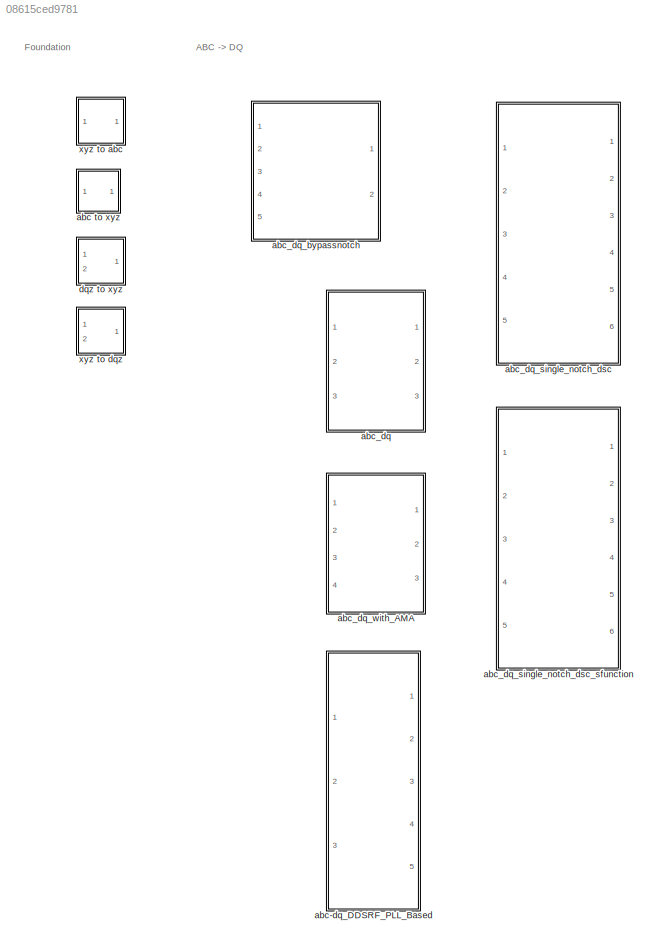
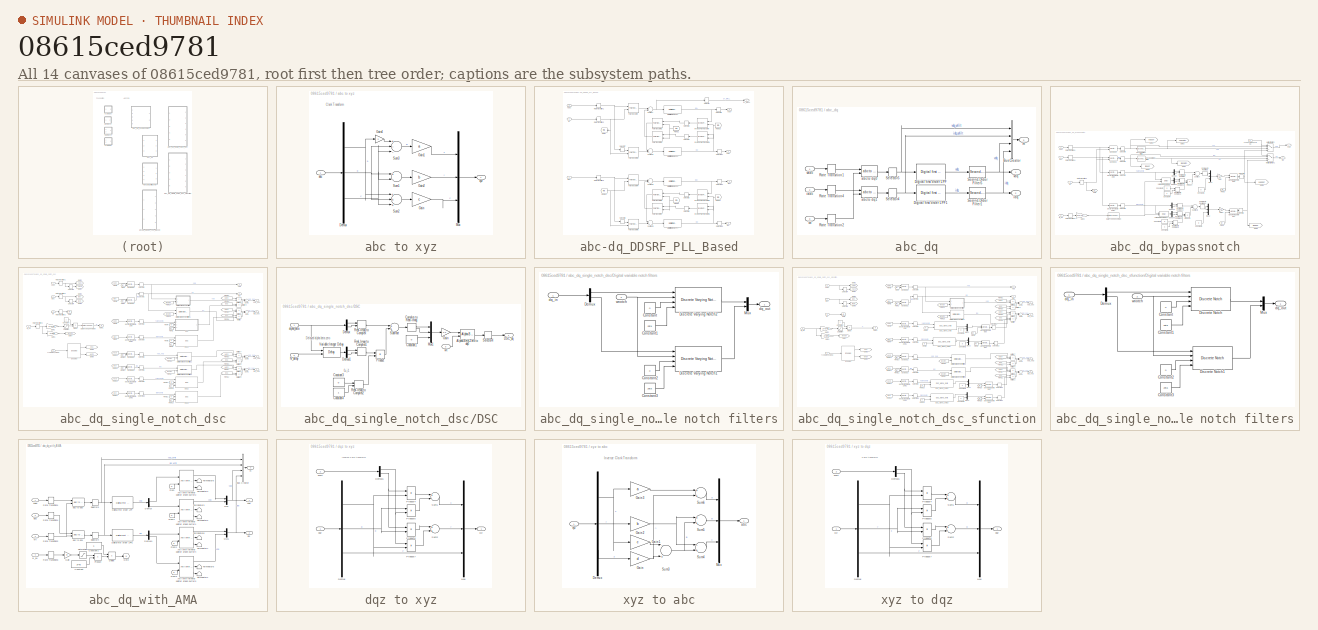
[diagram: thumbnail index - all 14 canvases of the model, root first then tree order]
MODEL slx_08615ced9781
KIND library
CONFIG AbsTol = auto
CONFIG EnableMultiTasking = off
CONFIG FixedStep = auto
CONFIG MaxStep = auto
CONFIG MinStep = auto
CONFIG RelTol = 1e-3
CONFIG SampleTimeConstraint = Unconstrained
CONFIG Solver = VariableStepAuto
CONFIG SolverName = VariableStepAuto
CONFIG StartTime = 0.0
CONFIG StopTime = 10.0
BLOCK [SubSystem] abc to xyz
  Ports = [1, 1]
  RequestExecContextInheritance = off
BLOCK [Demux] abc to xyz/Demux
  DisplayOption = bar
  Outputs = 3
  Ports = [1, 3]
BLOCK [Gain] abc to xyz/Gain
  Gain = c
  OutDataTypeStr = Inherit: Inherit via internal rule
  ParamDataTypeStr = Inherit: Inherit via internal rule
  SaturateOnIntegerOverflow = off
BLOCK [Gain] abc to xyz/Gain1
  Gain = a
  OutDataTypeStr = Inherit: Inherit via internal rule
  ParamDataTypeStr = Inherit: Inherit via internal rule
  SaturateOnIntegerOverflow = off
BLOCK [Gain] abc to xyz/Gain2
  Gain = b
  OutDataTypeStr = Inherit: Inherit via internal rule
  ParamDataTypeStr = Inherit: Inherit via internal rule
  SaturateOnIntegerOverflow = off
BLOCK [Gain] abc to xyz/Gain4
  Gain = 2
  OutDataTypeStr = Inherit: Inherit via internal rule
  ParamDataTypeStr = Inherit: Inherit via internal rule
  SaturateOnIntegerOverflow = off
BLOCK [Mux] abc to xyz/Mux
  DisplayOption = bar
  Inputs = 3
  Ports = [3, 1]
BLOCK [Sum] abc to xyz/Sum1
  InputSameDT = off
  Inputs = +-
  OutDataTypeStr = Inherit: Inherit via internal rule
  Ports = [2, 1]
  SaturateOnIntegerOverflow = off
BLOCK [Sum] abc to xyz/Sum2
  InputSameDT = off
  Inputs = +++
  OutDataTypeStr = Inherit: Inherit via internal rule
  Ports = [3, 1]
  SaturateOnIntegerOverflow = off
BLOCK [Sum] abc to xyz/Sum3
  InputSameDT = off
  Inputs = +--
  OutDataTypeStr = Inherit: Inherit via internal rule
  Ports = [3, 1]
  SaturateOnIntegerOverflow = off
BLOCK [Inport] abc to xyz/abc
  IconDisplay = Port number
BLOCK [Outport] abc to xyz/xyz
  IconDisplay = Port number
BLOCK [SubSystem] abc-dq_DDSRF_PLL_Based
  Ports = [3, 5]
  RequestExecContextInheritance = off
BLOCK [Reference] abc-dq_DDSRF_PLL_Based/Digital first order LPF1  REF=pwrsysBasic/Digital first order LPF
  Ports = [1, 1]
  SourceBlock = pwrsysBasic/Digital first order LPF
  SourceProductName = NTNU Power Systems
  SourceType = Digital first-order low-pass filter
BLOCK [Reference] abc-dq_DDSRF_PLL_Based/Digital first order LPF2  REF=pwrsysBasic/Digital first order LPF
  Ports = [1, 1]
  SourceBlock = pwrsysBasic/Digital first order LPF
  SourceProductName = NTNU Power Systems
  SourceType = Digital first-order low-pass filter
BLOCK [Reference] abc-dq_DDSRF_PLL_Based/Digital first order LPF3  REF=pwrsysBasic/Digital first order LPF
  Ports = [1, 1]
  SourceBlock = pwrsysBasic/Digital first order LPF
  SourceProductName = NTNU Power Systems
  SourceType = Digital first-order low-pass filter
BLOCK [Reference] abc-dq_DDSRF_PLL_Based/Digital first order LPF4  REF=pwrsysBasic/Digital first order LPF
  Ports = [1, 1]
  SourceBlock = pwrsysBasic/Digital first order LPF
  SourceProductName = NTNU Power Systems
  SourceType = Digital first-order low-pass filter
BLOCK [From] abc-dq_DDSRF_PLL_Based/From29
  GotoTag = teta
BLOCK [From] abc-dq_DDSRF_PLL_Based/From30
  GotoTag = teta
BLOCK [From] abc-dq_DDSRF_PLL_Based/From31
  GotoTag = teta
BLOCK [From] abc-dq_DDSRF_PLL_Based/From32
  GotoTag = teta
BLOCK [From] abc-dq_DDSRF_PLL_Based/From33
  GotoTag = teta
BLOCK [Goto] abc-dq_DDSRF_PLL_Based/Goto7
  GotoTag = teta
BLOCK [Inport] abc-dq_DDSRF_PLL_Based/Iabc
  IconDisplay = Port number
  Port = 3
BLOCK [Reference] abc-dq_DDSRF_PLL_Based/Inverse Park Transform  REF=peTransforms/Inverse
Park Transform
  Ports = [2, 1]
  SourceBlock = peTransforms/Inverse\nPark Transform
  SourceType = Inverse Park Transform
BLOCK [Reference] abc-dq_DDSRF_PLL_Based/Inverse Park Transform1  REF=peTransforms/Inverse
Park Transform
  Ports = [2, 1]
  SourceBlock = peTransforms/Inverse\nPark Transform
  SourceType = Inverse Park Transform
BLOCK [Reference] abc-dq_DDSRF_PLL_Based/Inverse Park Transform2  REF=peTransforms/Inverse
Park Transform
  Ports = [2, 1]
  SourceBlock = peTransforms/Inverse\nPark Transform
  SourceType = Inverse Park Transform
BLOCK [Reference] abc-dq_DDSRF_PLL_Based/Inverse Park Transform3  REF=peTransforms/Inverse
Park Transform
  Ports = [2, 1]
  SourceBlock = peTransforms/Inverse\nPark Transform
  SourceType = Inverse Park Transform
BLOCK [Reference] abc-dq_DDSRF_PLL_Based/Park Transform  REF=peTransforms/Park Transform
  Ports = [2, 1]
  SourceBlock = peTransforms/Park Transform
  SourceType = Park Transform
BLOCK [Reference] abc-dq_DDSRF_PLL_Based/Park Transform1  REF=peTransforms/Park Transform
  Ports = [2, 1]
  SourceBlock = peTransforms/Park Transform
  SourceType = Park Transform
BLOCK [Reference] abc-dq_DDSRF_PLL_Based/Park Transform2  REF=peTransforms/Park Transform
  Ports = [2, 1]
  SourceBlock = peTransforms/Park Transform
  SourceType = Park Transform
BLOCK [Reference] abc-dq_DDSRF_PLL_Based/Park Transform3  REF=peTransforms/Park Transform
  Ports = [2, 1]
  SourceBlock = peTransforms/Park Transform
  SourceType = Park Transform
BLOCK [Reference] abc-dq_DDSRF_PLL_Based/Park Transform4  REF=peTransforms/Park Transform
  Ports = [2, 1]
  SourceBlock = peTransforms/Park Transform
  SourceType = Park Transform
BLOCK [Reference] abc-dq_DDSRF_PLL_Based/Park Transform5  REF=peTransforms/Park Transform
  Ports = [2, 1]
  SourceBlock = peTransforms/Park Transform
  SourceType = Park Transform
BLOCK [Reference] abc-dq_DDSRF_PLL_Based/Park Transform6  REF=peTransforms/Park Transform
  Ports = [2, 1]
  SourceBlock = peTransforms/Park Transform
  SourceType = Park Transform
BLOCK [Reference] abc-dq_DDSRF_PLL_Based/Park Transform7  REF=peTransforms/Park Transform
  Ports = [2, 1]
  SourceBlock = peTransforms/Park Transform
  SourceType = Park Transform
BLOCK [RateTransition] abc-dq_DDSRF_PLL_Based/Rate Transition1
  OutPortSampleTime = Ts
BLOCK [RateTransition] abc-dq_DDSRF_PLL_Based/Rate Transition2
  OutPortSampleTime = Ts
BLOCK [RateTransition] abc-dq_DDSRF_PLL_Based/Rate Transition3
  OutPortSampleTime = Ts
BLOCK [Selector] abc-dq_DDSRF_PLL_Based/Selector
  IndexOptions = Index vector (dialog)
  Indices = 2
  InputPortWidth = 3
  OutputSizes = 1
  Ports = [1, 1]
BLOCK [Selector] abc-dq_DDSRF_PLL_Based/Selector10
  IndexOptions = Index vector (dialog)
  Indices = [1 2]
  InputPortWidth = 3
  OutputSizes = 1
  Ports = [1, 1]
BLOCK [Selector] abc-dq_DDSRF_PLL_Based/Selector11
  IndexOptions = Index vector (dialog)
  Indices = [1 2]
  InputPortWidth = 3
  OutputSizes = 1
  Ports = [1, 1]
BLOCK [Selector] abc-dq_DDSRF_PLL_Based/Selector12
  IndexOptions = Index vector (dialog)
  Indices = [1 2]
  InputPortWidth = 3
  OutputSizes = 1
  Ports = [1, 1]
BLOCK [Selector] abc-dq_DDSRF_PLL_Based/Selector2
  IndexOptions = Index vector (dialog)
  Indices = [1 3 2]
  InputPortWidth = 3
  OutputSizes = 1
  Ports = [1, 1]
BLOCK [Selector] abc-dq_DDSRF_PLL_Based/Selector3
  IndexOptions = Index vector (dialog)
  Indices = [1 3 2]
  InputPortWidth = 3
  OutputSizes = 1
  Ports = [1, 1]
BLOCK [Selector] abc-dq_DDSRF_PLL_Based/Selector4
  IndexOptions = Index vector (dialog)
  Indices = [1 3 2]
  InputPortWidth = 3
  OutputSizes = 1
  Ports = [1, 1]
BLOCK [Selector] abc-dq_DDSRF_PLL_Based/Selector6
  IndexOptions = Index vector (dialog)
  Indices = [1 3 2]
  InputPortWidth = 3
  OutputSizes = 1
  Ports = [1, 1]
BLOCK [Selector] abc-dq_DDSRF_PLL_Based/Selector7
  IndexOptions = Index vector (dialog)
  Indices = [1 3 2]
  InputPortWidth = 3
  OutputSizes = 1
  Ports = [1, 1]
BLOCK [Selector] abc-dq_DDSRF_PLL_Based/Selector8
  IndexOptions = Index vector (dialog)
  Indices = [1 3 2]
  InputPortWidth = 3
  OutputSizes = 1
  Ports = [1, 1]
BLOCK [Selector] abc-dq_DDSRF_PLL_Based/Selector9
  IndexOptions = Index vector (dialog)
  Indices = [1 2]
  InputPortWidth = 3
  OutputSizes = 1
  Ports = [1, 1]
BLOCK [Sum] abc-dq_DDSRF_PLL_Based/Subtract
  InputSameDT = off
  Inputs = +-
  OutDataTypeStr = Inherit: Inherit via internal rule
  Ports = [2, 1]
  SaturateOnIntegerOverflow = off
BLOCK [Sum] abc-dq_DDSRF_PLL_Based/Subtract1
  InputSameDT = off
  Inputs = -+
  OutDataTypeStr = Inherit: Inherit via internal rule
  Ports = [2, 1]
  SaturateOnIntegerOverflow = off
BLOCK [Sum] abc-dq_DDSRF_PLL_Based/Subtract2
  InputSameDT = off
  Inputs = +-
  OutDataTypeStr = Inherit: Inherit via internal rule
  Ports = [2, 1]
  SaturateOnIntegerOverflow = off
BLOCK [Sum] abc-dq_DDSRF_PLL_Based/Subtract3
  InputSameDT = off
  Inputs = -+
  OutDataTypeStr = Inherit: Inherit via internal rule
  Ports = [2, 1]
  SaturateOnIntegerOverflow = off
BLOCK [Inport] abc-dq_DDSRF_PLL_Based/Vabc
  IconDisplay = Port number
BLOCK [Outport] abc-dq_DDSRF_PLL_Based/idq+
  IconDisplay = Port number
  Port = 4
BLOCK [Outport] abc-dq_DDSRF_PLL_Based/idq-
  IconDisplay = Port number
  Port = 5
BLOCK [Outport] abc-dq_DDSRF_PLL_Based/q+_forPLL
  IconDisplay = Port number
BLOCK [Outport] abc-dq_DDSRF_PLL_Based/vdq+
  IconDisplay = Port number
  Port = 2
BLOCK [Outport] abc-dq_DDSRF_PLL_Based/vdq-
  IconDisplay = Port number
  Port = 3
BLOCK [Inport] abc-dq_DDSRF_PLL_Based/wt
  IconDisplay = Port number
  Port = 2
BLOCK [SubSystem] abc_dq
  Ports = [3, 3]
  RequestExecContextInheritance = off
BLOCK [BusCreator] abc_dq/Bus Creator
  DisplayOption = bar
  InheritFromInputs = on
  Inputs = 4
  Ports = [4, 1]
BLOCK [Reference] abc_dq/Digital first order LPF  REF=pwrsysBasic/Digital first order LPF
  Ports = [1, 1]
  SourceBlock = pwrsysBasic/Digital first order LPF
  SourceProductName = NTNU Power Systems
  SourceType = Digital first-order low-pass filter
BLOCK [Reference] abc_dq/Digital first order LPF1  REF=pwrsysBasic/Digital first order LPF
  Ports = [1, 1]
  SourceBlock = pwrsysBasic/Digital first order LPF
  SourceProductName = NTNU Power Systems
  SourceType = Digital first-order low-pass filter
BLOCK [RateTransition] abc_dq/Rate Transition1
  OutPortSampleTime = Ts
BLOCK [RateTransition] abc_dq/Rate Transition2
  OutPortSampleTime = Ts
BLOCK [RateTransition] abc_dq/Rate Transition4
  OutPortSampleTime = Ts
BLOCK [Reference] abc_dq/Second-Order Filter1  REF=powerlib_meascontrol/Filters/Second-Order
Filter
  Ports = [1, 1]
  SourceBlock = powerlib_meascontrol/Filters/Second-Order\nFilter
  SourceProductBaseCode = PS
  SourceProductName = Simscape Power Systems
  SourceType = Second-Order Filter
BLOCK [Reference] abc_dq/Second-Order Filter5  REF=powerlib_meascontrol/Filters/Second-Order
Filter
  Ports = [1, 1]
  SourceBlock = powerlib_meascontrol/Filters/Second-Order\nFilter
  SourceProductBaseCode = PS
  SourceProductName = Simscape Power Systems
  SourceType = Second-Order Filter
BLOCK [Selector] abc_dq/Selector4
  IndexOptions = Index vector (dialog)
  Indices = [1 2]
  InputPortWidth = 3
  OutputSizes = 1
  Ports = [1, 1]
BLOCK [Selector] abc_dq/Selector5
  IndexOptions = Index vector (dialog)
  Indices = [1 2]
  InputPortWidth = 3
  OutputSizes = 1
  Ports = [1, 1]
BLOCK [Reference] abc_dq/abc to dq0  REF=powerlib_meascontrol/Transformations/abc to dq0
  Ports = [2, 1]
  SourceBlock = powerlib_meascontrol/Transformations/abc to dq0
  SourceProductBaseCode = PS
  SourceProductName = Simscape Power Systems
  SourceType = abc to dq0 Transformation
BLOCK [Reference] abc_dq/abc to dq1  REF=powerlib_meascontrol/Transformations/abc to dq0
  Ports = [2, 1]
  SourceBlock = powerlib_meascontrol/Transformations/abc to dq0
  SourceProductBaseCode = PS
  SourceProductName = Simscape Power Systems
  SourceType = abc to dq0 Transformation
BLOCK [Inport] abc_dq/iabc
  IconDisplay = Port number
  Port = 2
BLOCK [Outport] abc_dq/idq
  IconDisplay = Port number
  Port = 2
BLOCK [Outport] abc_dq/m
  IconDisplay = Port number
  Port = 3
BLOCK [Inport] abc_dq/vabc
  IconDisplay = Port number
BLOCK [Outport] abc_dq/vdq
  IconDisplay = Port number
BLOCK [Inport] abc_dq/wt
  IconDisplay = Port number
  Port = 3
BLOCK [SubSystem] abc_dq_bypassnotch
  Ports = [5, 2]
  RequestExecContextInheritance = off
BLOCK [Inport] abc_dq_bypassnotch/1=no,2=Notch,3=DSC
  IconDisplay = Port number
  Port = 5
BLOCK [Reference] abc_dq_bypassnotch/Alpha-Beta-Zero to dq0  REF=powerlib_meascontrol/Transformations/Alpha-Beta-Zero
to dq0
  Ports = [2, 1]
  SourceBlock = powerlib_meascontrol/Transformations/Alpha-Beta-Zero\nto dq0
  SourceProductBaseCode = PS
  SourceProductName = Simscape Power Systems
  SourceType = Alpha-Beta-Zero to dq0 Transformation
BLOCK [Reference] abc_dq_bypassnotch/Alpha-Beta-Zero to dq1  REF=powerlib_meascontrol/Transformations/Alpha-Beta-Zero
to dq0
  Ports = [2, 1]
  SourceBlock = powerlib_meascontrol/Transformations/Alpha-Beta-Zero\nto dq0
  SourceProductBaseCode = PS
  SourceProductName = Simscape Power Systems
  SourceType = Alpha-Beta-Zero to dq0 Transformation
BLOCK [ComplexToRealImag] abc_dq_bypassnotch/Complex to Real-Imag
  Ports = [1, 2]
BLOCK [ComplexToRealImag] abc_dq_bypassnotch/Complex to Real-Imag1
  Ports = [1, 2]
BLOCK [Constant] abc_dq_bypassnotch/Constant1
  Value = 0
BLOCK [Constant] abc_dq_bypassnotch/Constant2
  Value = 0
BLOCK [Constant] abc_dq_bypassnotch/Constant3
  Value = 0
BLOCK [Constant] abc_dq_bypassnotch/Constant4
BLOCK [Constant] abc_dq_bypassnotch/Constant5
  Value = 0
BLOCK [Constant] abc_dq_bypassnotch/Constant6
BLOCK [DataTypeConversion] abc_dq_bypassnotch/Data Type Conversion
  OutDataTypeStr = int16
  RndMeth = Round
BLOCK [Demux] abc_dq_bypassnotch/Demux
  DisplayOption = bar
  Outputs = 2
  Ports = [1, 2]
BLOCK [Demux] abc_dq_bypassnotch/Demux1
  DisplayOption = bar
  Outputs = 2
  Ports = [1, 2]
BLOCK [Demux] abc_dq_bypassnotch/Demux2
  DisplayOption = bar
  Outputs = 2
  Ports = [1, 2]
BLOCK [Demux] abc_dq_bypassnotch/Demux3
  DisplayOption = bar
  Outputs = 2
  Ports = [1, 2]
BLOCK [From] abc_dq_bypassnotch/From2
  GotoTag = wt
BLOCK [From] abc_dq_bypassnotch/From3
  GotoTag = wt
BLOCK [Gain] abc_dq_bypassnotch/Gain
  Gain = 0.5
  OutDataTypeStr = Inherit: Inherit via internal rule
  ParamDataTypeStr = Inherit: Inherit via internal rule
  SaturateOnIntegerOverflow = off
BLOCK [Gain] abc_dq_bypassnotch/Gain1
  Gain = 0.5
  OutDataTypeStr = Inherit: Inherit via internal rule
  ParamDataTypeStr = Inherit: Inherit via internal rule
  SaturateOnIntegerOverflow = off
BLOCK [Gain] abc_dq_bypassnotch/Gain2
  Gain = 1/(2*Ts*fn)
  OutDataTypeStr = Inherit: Inherit via internal rule
  ParamDataTypeStr = Inherit: Inherit via internal rule
  SaturateOnIntegerOverflow = off
BLOCK [Goto] abc_dq_bypassnotch/Goto
  GotoTag = wt
BLOCK [Goto] abc_dq_bypassnotch/Goto1
  GotoTag = vdqunf
BLOCK [Goto] abc_dq_bypassnotch/Goto2
  GotoTag = idqunf
BLOCK [Goto] abc_dq_bypassnotch/Goto3
  GotoTag = vdqnotch
BLOCK [Goto] abc_dq_bypassnotch/Goto4
  GotoTag = idqnotch
BLOCK [Goto] abc_dq_bypassnotch/Goto5
  GotoTag = vdqDSC
BLOCK [Goto] abc_dq_bypassnotch/Goto6
  GotoTag = idqDSC
BLOCK [MultiPortSwitch] abc_dq_bypassnotch/Multiport Switch
  InputSameDT = off
  Ports = [4, 1]
  SaturateOnIntegerOverflow = off
BLOCK [MultiPortSwitch] abc_dq_bypassnotch/Multiport Switch1
  InputSameDT = off
  Ports = [4, 1]
  SaturateOnIntegerOverflow = off
BLOCK [Mux] abc_dq_bypassnotch/Mux1
  DisplayOption = bar
  Inputs = [1 1 1]
  Ports = [3, 1]
BLOCK [Mux] abc_dq_bypassnotch/Mux2
  DisplayOption = bar
  Inputs = [1 1 1]
  Ports = [3, 1]
BLOCK [Product] abc_dq_bypassnotch/Product
  InputSameDT = off
  OutDataTypeStr = Inherit: Inherit via internal rule
  Ports = [2, 1]
  RndMeth = Floor
  SaturateOnIntegerOverflow = off
BLOCK [Product] abc_dq_bypassnotch/Product1
  InputSameDT = off
  OutDataTypeStr = Inherit: Inherit via internal rule
  Ports = [2, 1]
  RndMeth = Floor
  SaturateOnIntegerOverflow = off
BLOCK [RateTransition] abc_dq_bypassnotch/Rate Transition1
  OutPortSampleTime = Ts
BLOCK [RateTransition] abc_dq_bypassnotch/Rate Transition2
  OutPortSampleTime = Ts
BLOCK [RateTransition] abc_dq_bypassnotch/Rate Transition3
  InitialCondition = 1
  OutPortSampleTime = Ts
BLOCK [RateTransition] abc_dq_bypassnotch/Rate Transition4
  OutPortSampleTime = Ts
BLOCK [RealImagToComplex] abc_dq_bypassnotch/Real-Imag to Complex
  Ports = [2, 1]
BLOCK [RealImagToComplex] abc_dq_bypassnotch/Real-Imag to Complex1
  Ports = [2, 1]
BLOCK [RealImagToComplex] abc_dq_bypassnotch/Real-Imag to Complex2
  Ports = [2, 1]
BLOCK [RealImagToComplex] abc_dq_bypassnotch/Real-Imag to Complex3
  Ports = [2, 1]
BLOCK [RealImagToComplex] abc_dq_bypassnotch/Real-Imag to Complex4
  Ports = [2, 1]
BLOCK [RealImagToComplex] abc_dq_bypassnotch/Real-Imag to Complex5
  Ports = [2, 1]
BLOCK [Reference] abc_dq_bypassnotch/Second-Order Filter1  REF=powerlib_meascontrol/Filters/Second-Order
Filter
  Ports = [1, 1]
  SourceBlock = powerlib_meascontrol/Filters/Second-Order\nFilter
  SourceProductBaseCode = PS
  SourceProductName = Simscape Power Systems
  SourceType = Second-Order Filter
BLOCK [Reference] abc_dq_bypassnotch/Second-Order Filter5  REF=powerlib_meascontrol/Filters/Second-Order
Filter
  Ports = [1, 1]
  SourceBlock = powerlib_meascontrol/Filters/Second-Order\nFilter
  SourceProductBaseCode = PS
  SourceProductName = Simscape Power Systems
  SourceType = Second-Order Filter
BLOCK [Selector] abc_dq_bypassnotch/Selector1
  IndexOptions = Index vector (dialog)
  Indices = [1 2]
  InputPortWidth = 3
  OutputSizes = 1
  Ports = [1, 1]
BLOCK [Selector] abc_dq_bypassnotch/Selector2
  IndexOptions = Index vector (dialog)
  Indices = [1 2]
  InputPortWidth = 3
  OutputSizes = 1
  Ports = [1, 1]
BLOCK [Selector] abc_dq_bypassnotch/Selector3
  IndexOptions = Index vector (dialog)
  Indices = [1 2]
  InputPortWidth = 3
  OutputSizes = 1
  Ports = [1, 1]
BLOCK [Selector] abc_dq_bypassnotch/Selector4
  IndexOptions = Index vector (dialog)
  Indices = [1 2]
  InputPortWidth = 3
  OutputSizes = 1
  Ports = [1, 1]
BLOCK [Selector] abc_dq_bypassnotch/Selector5
  IndexOptions = Index vector (dialog)
  Indices = [1 2]
  InputPortWidth = 3
  OutputSizes = 1
  Ports = [1, 1]
BLOCK [Selector] abc_dq_bypassnotch/Selector6
  IndexOptions = Index vector (dialog)
  Indices = [1 2]
  InputPortWidth = 3
  OutputSizes = 1
  Ports = [1, 1]
BLOCK [Sum] abc_dq_bypassnotch/Subtract
  InputSameDT = off
  OutDataTypeStr = Inherit: Inherit via internal rule
  Ports = [2, 1]
  SaturateOnIntegerOverflow = off
BLOCK [Sum] abc_dq_bypassnotch/Subtract1
  InputSameDT = off
  OutDataTypeStr = Inherit: Inherit via internal rule
  Ports = [2, 1]
  SaturateOnIntegerOverflow = off
BLOCK [Delay] abc_dq_bypassnotch/Variable Integer Delay
  DelayLength = 200
  DelayLengthSource = Input port
  DelayLengthUpperLimit = 500
  InputPortMap = u0,p1
  Ports = [2, 1]
  SampleTime = Ts
BLOCK [Delay] abc_dq_bypassnotch/Variable Integer Delay1
  DelayLength = 200
  DelayLengthSource = Input port
  DelayLengthUpperLimit = 500
  InputPortMap = u0,p1
  Ports = [2, 1]
  SampleTime = Ts
BLOCK [Reference] abc_dq_bypassnotch/abc to Alpha-Beta-Zero  REF=powerlib_meascontrol/Transformations/abc to
Alpha-Beta-Zero
  Ports = [1, 1]
  SourceBlock = powerlib_meascontrol/Transformations/abc to\nAlpha-Beta-Zero
  SourceProductBaseCode = PS
  SourceProductName = Simscape Power Systems
  SourceType = abc to Alpha-Beta-Zero Transformation
BLOCK [Reference] abc_dq_bypassnotch/abc to Alpha-Beta-Zero1  REF=powerlib_meascontrol/Transformations/abc to
Alpha-Beta-Zero
  Ports = [1, 1]
  SourceBlock = powerlib_meascontrol/Transformations/abc to\nAlpha-Beta-Zero
  SourceProductBaseCode = PS
  SourceProductName = Simscape Power Systems
  SourceType = abc to Alpha-Beta-Zero Transformation
BLOCK [Reference] abc_dq_bypassnotch/abc to dq0  REF=powerlib_meascontrol/Transformations/abc to dq0
  Ports = [2, 1]
  SourceBlock = powerlib_meascontrol/Transformations/abc to dq0
  SourceProductBaseCode = PS
  SourceProductName = Simscape Power Systems
  SourceType = abc to dq0 Transformation
BLOCK [Reference] abc_dq_bypassnotch/abc to dq1  REF=powerlib_meascontrol/Transformations/abc to dq0
  Ports = [2, 1]
  SourceBlock = powerlib_meascontrol/Transformations/abc to dq0
  SourceProductBaseCode = PS
  SourceProductName = Simscape Power Systems
  SourceType = abc to dq0 Transformation
BLOCK [Inport] abc_dq_bypassnotch/iabc
  IconDisplay = Port number
  Port = 2
BLOCK [Outport] abc_dq_bypassnotch/idq
  IconDisplay = Port number
  Port = 2
BLOCK [Inport] abc_dq_bypassnotch/vabc
  IconDisplay = Port number
BLOCK [Outport] abc_dq_bypassnotch/vdq
  IconDisplay = Port number
BLOCK [Inport] abc_dq_bypassnotch/w_pu
  IconDisplay = Port number
  Port = 4
BLOCK [Inport] abc_dq_bypassnotch/wt
  IconDisplay = Port number
  Port = 3
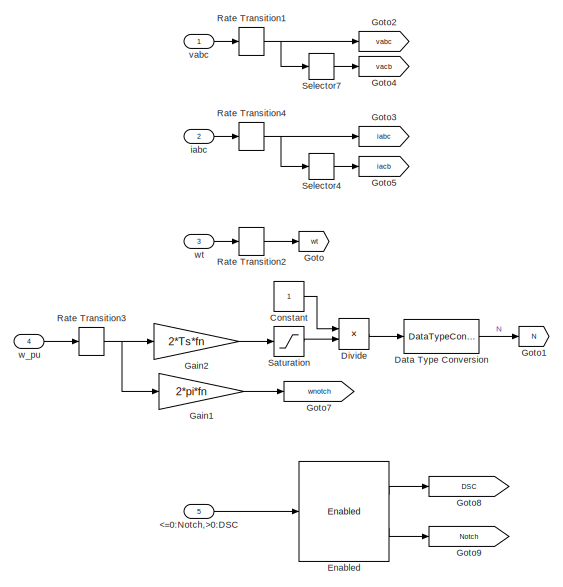
[diagram: abc_dq_single_notch_dsc - part 1/2, middle left region]
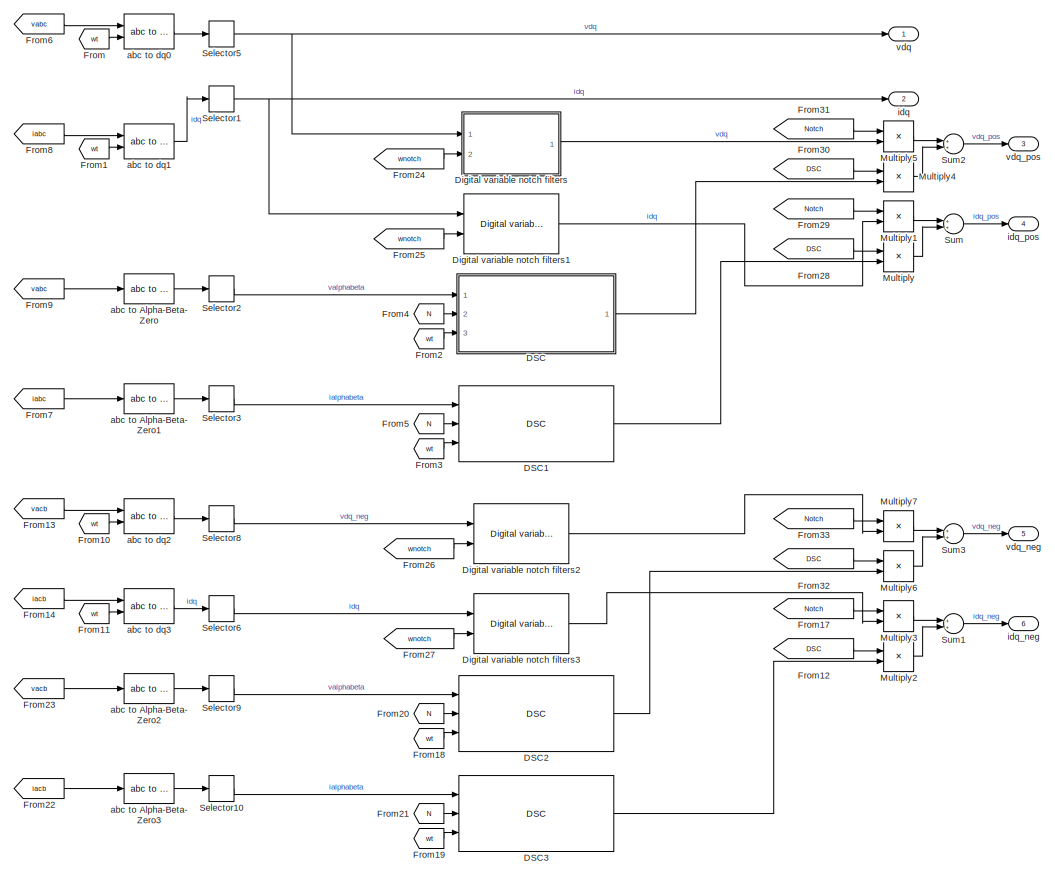
[diagram: abc_dq_single_notch_dsc - part 2/2, right side, full height]
BLOCK [SubSystem] abc_dq_single_notch_dsc
  Ports = [5, 6]
  RequestExecContextInheritance = off
BLOCK [Inport] abc_dq_single_notch_dsc/<=0:Notch,>0:DSC
  IconDisplay = Port number
  Port = 5
BLOCK [Constant] abc_dq_single_notch_dsc/Constant
BLOCK [SubSystem] abc_dq_single_notch_dsc/DSC
  Ports = [3, 1]
  RequestExecContextInheritance = off
BLOCK [Reference] abc_dq_single_notch_dsc/DSC/Alpha-Beta-Zero to dq0  REF=powerlib_meascontrol/Transformations/Alpha-Beta-Zero
to dq0
  Ports = [2, 1]
  SourceBlock = powerlib_meascontrol/Transformations/Alpha-Beta-Zero\nto dq0
  SourceProductBaseCode = PS
  SourceProductName = Simscape Power Systems
  SourceType = Alpha-Beta-Zero to dq0 Transformation
BLOCK [ComplexToRealImag] abc_dq_single_notch_dsc/DSC/Complex to Real-Imag
  Ports = [1, 2]
BLOCK [Constant] abc_dq_single_notch_dsc/DSC/Constant1
  Value = 0
BLOCK [Constant] abc_dq_single_notch_dsc/DSC/Constant3
  Value = 0
BLOCK [Constant] abc_dq_single_notch_dsc/DSC/Constant4
BLOCK [Outport] abc_dq_single_notch_dsc/DSC/DSC_dq
  IconDisplay = Port number
BLOCK [Demux] abc_dq_single_notch_dsc/DSC/Demux
  DisplayOption = bar
  Outputs = 2
  Ports = [1, 2]
BLOCK [Demux] abc_dq_single_notch_dsc/DSC/Demux1
  DisplayOption = bar
  Outputs = 2
  Ports = [1, 2]
BLOCK [Gain] abc_dq_single_notch_dsc/DSC/Gain
  Gain = 0.5
  OutDataTypeStr = Inherit: Inherit via internal rule
  ParamDataTypeStr = Inherit: Inherit via internal rule
  SaturateOnIntegerOverflow = off
BLOCK [Mux] abc_dq_single_notch_dsc/DSC/Mux1
  DisplayOption = bar
  Inputs = [1 1 1]
  Ports = [3, 1]
BLOCK [Inport] abc_dq_single_notch_dsc/DSC/N_delay
  IconDisplay = Port number
  Port = 2
BLOCK [Product] abc_dq_single_notch_dsc/DSC/Product
  InputSameDT = off
  OutDataTypeStr = Inherit: Inherit via internal rule
  Ports = [2, 1]
  RndMeth = Floor
  SaturateOnIntegerOverflow = off
BLOCK [RealImagToComplex] abc_dq_single_notch_dsc/DSC/Real-Imag to Complex
  Ports = [2, 1]
BLOCK [RealImagToComplex] abc_dq_single_notch_dsc/DSC/Real-Imag to Complex1
  Ports = [2, 1]
BLOCK [RealImagToComplex] abc_dq_single_notch_dsc/DSC/Real-Imag to Complex2
  Ports = [2, 1]
BLOCK [Selector] abc_dq_single_notch_dsc/DSC/Selector4
  IndexOptions = Index vector (dialog)
  Indices = [1 2]
  InputPortWidth = 3
  OutputSizes = 1
  Ports = [1, 1]
BLOCK [Sum] abc_dq_single_notch_dsc/DSC/Subtract
  InputSameDT = off
  OutDataTypeStr = Inherit: Inherit via internal rule
  Ports = [2, 1]
  SaturateOnIntegerOverflow = off
BLOCK [Delay] abc_dq_single_notch_dsc/DSC/Variable Integer Delay
  DelayLength = 200
  DelayLengthSource = Input port
  DelayLengthUpperLimit = 500
  InputPortMap = u0,p1
  Ports = [2, 1]
  SampleTime = Ts
BLOCK [Inport] abc_dq_single_notch_dsc/DSC/alpha_beta
  IconDisplay = Port number
BLOCK [Inport] abc_dq_single_notch_dsc/DSC/wt
  IconDisplay = Port number
  Port = 3
BLOCK [Reference] abc_dq_single_notch_dsc/DSC1  REF=pwrsysTransf/abc_dq_single_notch_dsc/DSC
  Ports = [3, 1]
  SourceBlock = pwrsysTransf/abc_dq_single_notch_dsc/DSC
  SourceProductName = NTNU Power Systems
  SourceType = SubSystem
BLOCK [Reference] abc_dq_single_notch_dsc/DSC2  REF=pwrsysTransf/abc_dq_single_notch_dsc/DSC
  Ports = [3, 1]
  SourceBlock = pwrsysTransf/abc_dq_single_notch_dsc/DSC
  SourceProductName = NTNU Power Systems
  SourceType = SubSystem
BLOCK [Reference] abc_dq_single_notch_dsc/DSC3  REF=pwrsysTransf/abc_dq_single_notch_dsc/DSC
  Ports = [3, 1]
  SourceBlock = pwrsysTransf/abc_dq_single_notch_dsc/DSC
  SourceProductName = NTNU Power Systems
  SourceType = SubSystem
BLOCK [DataTypeConversion] abc_dq_single_notch_dsc/Data Type Conversion
  OutDataTypeStr = int16
  RndMeth = Round
BLOCK [SubSystem] abc_dq_single_notch_dsc/Digital variable notch filters
  Ports = [2, 1]
  RequestExecContextInheritance = off
BLOCK [Constant] abc_dq_single_notch_dsc/Digital variable notch filters/Constant
  Value = 0
BLOCK [Constant] abc_dq_single_notch_dsc/Digital variable notch filters/Constant1
  Value = zeta
BLOCK [Constant] abc_dq_single_notch_dsc/Digital variable notch filters/Constant2
  Value = 0
BLOCK [Constant] abc_dq_single_notch_dsc/Digital variable notch filters/Constant3
  Value = zeta
BLOCK [Demux] abc_dq_single_notch_dsc/Digital variable notch filters/Demux
  DisplayOption = bar
  Outputs = 2
  Ports = [1, 2]
BLOCK [Reference] abc_dq_single_notch_dsc/Digital variable notch filters/Discrete Varying Notch1  REF=cstblocks/Linear Parameter Varying/Discrete Varying Notch
  Ports = [4, 1]
  SourceBlock = cstblocks/Linear Parameter Varying/Discrete Varying Notch
  SourceProductBaseCode = CT
  SourceProductName = Control System Toolbox
  SourceType = Discrete Varying Notch
BLOCK [Reference] abc_dq_single_notch_dsc/Digital variable notch filters/Discrete Varying Notch2  REF=cstblocks/Linear Parameter Varying/Discrete Varying Notch
  Ports = [4, 1]
  SourceBlock = cstblocks/Linear Parameter Varying/Discrete Varying Notch
  SourceProductBaseCode = CT
  SourceProductName = Control System Toolbox
  SourceType = Discrete Varying Notch
BLOCK [Mux] abc_dq_single_notch_dsc/Digital variable notch filters/Mux
  DisplayOption = bar
  Inputs = 2
  Ports = [2, 1]
BLOCK [Inport] abc_dq_single_notch_dsc/Digital variable notch filters/dq_in
  IconDisplay = Port number
BLOCK [Outport] abc_dq_single_notch_dsc/Digital variable notch filters/dq_out
  IconDisplay = Port number
BLOCK [Inport] abc_dq_single_notch_dsc/Digital variable notch filters/wnotch
  IconDisplay = Port number
  Port = 2
BLOCK [Reference] abc_dq_single_notch_dsc/Digital variable notch filters1  REF=pwrsysTransf/abc_dq_single_notch_dsc/Digital variable notch filters
  Ports = [2, 1]
  SourceBlock = pwrsysTransf/abc_dq_single_notch_dsc/Digital variable notch filters
  SourceProductName = NTNU Power Systems
  SourceType = SubSystem
BLOCK [Reference] abc_dq_single_notch_dsc/Digital variable notch filters2  REF=pwrsysTransf/abc_dq_single_notch_dsc/Digital variable notch filters
  Ports = [2, 1]
  SourceBlock = pwrsysTransf/abc_dq_single_notch_dsc/Digital variable notch filters
  SourceProductName = NTNU Power Systems
  SourceType = SubSystem
BLOCK [Reference] abc_dq_single_notch_dsc/Digital variable notch filters3  REF=pwrsysTransf/abc_dq_single_notch_dsc/Digital variable notch filters
  Ports = [2, 1]
  SourceBlock = pwrsysTransf/abc_dq_single_notch_dsc/Digital variable notch filters
  SourceProductName = NTNU Power Systems
  SourceType = SubSystem
BLOCK [Product] abc_dq_single_notch_dsc/Divide
  InputSameDT = off
  Inputs = */
  OutDataTypeStr = Inherit: Inherit via internal rule
  Ports = [2, 1]
  RndMeth = Floor
  SaturateOnIntegerOverflow = off
BLOCK [Reference] abc_dq_single_notch_dsc/Enabled  REF=pwrsysBasic/Enabled
  Ports = [1, 2]
  SourceBlock = pwrsysBasic/Enabled
  SourceProductName = NTNU Power Systems
  SourceType = Enabled block
BLOCK [From] abc_dq_single_notch_dsc/From
  GotoTag = wt
BLOCK [From] abc_dq_single_notch_dsc/From1
  GotoTag = wt
BLOCK [From] abc_dq_single_notch_dsc/From10
  GotoTag = wt
BLOCK [From] abc_dq_single_notch_dsc/From11
  GotoTag = wt
BLOCK [From] abc_dq_single_notch_dsc/From12
  GotoTag = DSC
BLOCK [From] abc_dq_single_notch_dsc/From13
  GotoTag = vacb
BLOCK [From] abc_dq_single_notch_dsc/From14
  GotoTag = iacb
BLOCK [From] abc_dq_single_notch_dsc/From17
  GotoTag = Notch
BLOCK [From] abc_dq_single_notch_dsc/From18
  GotoTag = wt
BLOCK [From] abc_dq_single_notch_dsc/From19
  GotoTag = wt
BLOCK [From] abc_dq_single_notch_dsc/From2
  GotoTag = wt
BLOCK [From] abc_dq_single_notch_dsc/From20
  GotoTag = N
BLOCK [From] abc_dq_single_notch_dsc/From21
  GotoTag = N
BLOCK [From] abc_dq_single_notch_dsc/From22
  GotoTag = iacb
BLOCK [From] abc_dq_single_notch_dsc/From23
  GotoTag = vacb
BLOCK [From] abc_dq_single_notch_dsc/From24
  GotoTag = wnotch
BLOCK [From] abc_dq_single_notch_dsc/From25
  GotoTag = wnotch
BLOCK [From] abc_dq_single_notch_dsc/From26
  GotoTag = wnotch
BLOCK [From] abc_dq_single_notch_dsc/From27
  GotoTag = wnotch
BLOCK [From] abc_dq_single_notch_dsc/From28
  GotoTag = DSC
BLOCK [From] abc_dq_single_notch_dsc/From29
  GotoTag = Notch
BLOCK [From] abc_dq_single_notch_dsc/From3
  GotoTag = wt
BLOCK [From] abc_dq_single_notch_dsc/From30
  GotoTag = DSC
BLOCK [From] abc_dq_single_notch_dsc/From31
  GotoTag = Notch
BLOCK [From] abc_dq_single_notch_dsc/From32
  GotoTag = DSC
BLOCK [From] abc_dq_single_notch_dsc/From33
  GotoTag = Notch
BLOCK [From] abc_dq_single_notch_dsc/From4
  GotoTag = N
BLOCK [From] abc_dq_single_notch_dsc/From5
  GotoTag = N
BLOCK [From] abc_dq_single_notch_dsc/From6
  GotoTag = vabc
BLOCK [From] abc_dq_single_notch_dsc/From7
  GotoTag = iabc
BLOCK [From] abc_dq_single_notch_dsc/From8
  GotoTag = iabc
BLOCK [From] abc_dq_single_notch_dsc/From9
  GotoTag = vabc
BLOCK [Gain] abc_dq_single_notch_dsc/Gain1
  Gain = 2*pi*fn
  OutDataTypeStr = Inherit: Inherit via internal rule
  ParamDataTypeStr = Inherit: Inherit via internal rule
  SaturateOnIntegerOverflow = off
BLOCK [Gain] abc_dq_single_notch_dsc/Gain2
  Gain = 2*Ts*fn
  OutDataTypeStr = Inherit: Inherit via internal rule
  ParamDataTypeStr = Inherit: Inherit via internal rule
  SaturateOnIntegerOverflow = off
BLOCK [Goto] abc_dq_single_notch_dsc/Goto
  GotoTag = wt
BLOCK [Goto] abc_dq_single_notch_dsc/Goto1
  GotoTag = N
BLOCK [Goto] abc_dq_single_notch_dsc/Goto2
  GotoTag = vabc
BLOCK [Goto] abc_dq_single_notch_dsc/Goto3
  GotoTag = iabc
BLOCK [Goto] abc_dq_single_notch_dsc/Goto4
  GotoTag = vacb
BLOCK [Goto] abc_dq_single_notch_dsc/Goto5
  GotoTag = iacb
BLOCK [Goto] abc_dq_single_notch_dsc/Goto7
  GotoTag = wnotch
BLOCK [Goto] abc_dq_single_notch_dsc/Goto8
  GotoTag = DSC
BLOCK [Goto] abc_dq_single_notch_dsc/Goto9
  GotoTag = Notch
BLOCK [Product] abc_dq_single_notch_dsc/Multiply
  InputSameDT = off
  OutDataTypeStr = Inherit: Inherit via internal rule
  Ports = [2, 1]
  RndMeth = Floor
  SaturateOnIntegerOverflow = off
BLOCK [Product] abc_dq_single_notch_dsc/Multiply1
  InputSameDT = off
  OutDataTypeStr = Inherit: Inherit via internal rule
  Ports = [2, 1]
  RndMeth = Floor
  SaturateOnIntegerOverflow = off
BLOCK [Product] abc_dq_single_notch_dsc/Multiply2
  InputSameDT = off
  OutDataTypeStr = Inherit: Inherit via internal rule
  Ports = [2, 1]
  RndMeth = Floor
  SaturateOnIntegerOverflow = off
BLOCK [Product] abc_dq_single_notch_dsc/Multiply3
  InputSameDT = off
  OutDataTypeStr = Inherit: Inherit via internal rule
  Ports = [2, 1]
  RndMeth = Floor
  SaturateOnIntegerOverflow = off
BLOCK [Product] abc_dq_single_notch_dsc/Multiply4
  InputSameDT = off
  OutDataTypeStr = Inherit: Inherit via internal rule
  Ports = [2, 1]
  RndMeth = Floor
  SaturateOnIntegerOverflow = off
BLOCK [Product] abc_dq_single_notch_dsc/Multiply5
  InputSameDT = off
  OutDataTypeStr = Inherit: Inherit via internal rule
  Ports = [2, 1]
  RndMeth = Floor
  SaturateOnIntegerOverflow = off
BLOCK [Product] abc_dq_single_notch_dsc/Multiply6
  InputSameDT = off
  OutDataTypeStr = Inherit: Inherit via internal rule
  Ports = [2, 1]
  RndMeth = Floor
  SaturateOnIntegerOverflow = off
BLOCK [Product] abc_dq_single_notch_dsc/Multiply7
  InputSameDT = off
  OutDataTypeStr = Inherit: Inherit via internal rule
  Ports = [2, 1]
  RndMeth = Floor
  SaturateOnIntegerOverflow = off
BLOCK [RateTransition] abc_dq_single_notch_dsc/Rate Transition1
  OutPortSampleTime = Ts
BLOCK [RateTransition] abc_dq_single_notch_dsc/Rate Transition2
  OutPortSampleTime = Ts
BLOCK [RateTransition] abc_dq_single_notch_dsc/Rate Transition3
  InitialCondition = 1
  OutPortSampleTime = Ts
BLOCK [RateTransition] abc_dq_single_notch_dsc/Rate Transition4
  OutPortSampleTime = Ts
BLOCK [Saturate] abc_dq_single_notch_dsc/Saturation
  InputPortMap = u0
  LowerLimit = 0.000001
  Ports = [1, 1]
  UpperLimit = inf
BLOCK [Selector] abc_dq_single_notch_dsc/Selector1
  IndexOptions = Index vector (dialog)
  Indices = [1 2]
  InputPortWidth = 3
  OutputSizes = 1
  Ports = [1, 1]
BLOCK [Selector] abc_dq_single_notch_dsc/Selector10
  IndexOptions = Index vector (dialog)
  Indices = [1 2]
  InputPortWidth = 3
  OutputSizes = 1
  Ports = [1, 1]
BLOCK [Selector] abc_dq_single_notch_dsc/Selector2
  IndexOptions = Index vector (dialog)
  Indices = [1 2]
  InputPortWidth = 3
  OutputSizes = 1
  Ports = [1, 1]
BLOCK [Selector] abc_dq_single_notch_dsc/Selector3
  IndexOptions = Index vector (dialog)
  Indices = [1 2]
  InputPortWidth = 3
  OutputSizes = 1
  Ports = [1, 1]
BLOCK [Selector] abc_dq_single_notch_dsc/Selector4
  IndexOptions = Index vector (dialog)
  Indices = [1 3 2]
  InputPortWidth = 3
  OutputSizes = 1
  Ports = [1, 1]
BLOCK [Selector] abc_dq_single_notch_dsc/Selector5
  IndexOptions = Index vector (dialog)
  Indices = [1 2]
  InputPortWidth = 3
  OutputSizes = 1
  Ports = [1, 1]
BLOCK [Selector] abc_dq_single_notch_dsc/Selector6
  IndexOptions = Index vector (dialog)
  Indices = [1 2]
  InputPortWidth = 3
  OutputSizes = 1
  Ports = [1, 1]
BLOCK [Selector] abc_dq_single_notch_dsc/Selector7
  IndexOptions = Index vector (dialog)
  Indices = [1 3 2]
  InputPortWidth = 3
  OutputSizes = 1
  Ports = [1, 1]
BLOCK [Selector] abc_dq_single_notch_dsc/Selector8
  IndexOptions = Index vector (dialog)
  Indices = [1 2]
  InputPortWidth = 3
  OutputSizes = 1
  Ports = [1, 1]
BLOCK [Selector] abc_dq_single_notch_dsc/Selector9
  IndexOptions = Index vector (dialog)
  Indices = [1 2]
  InputPortWidth = 3
  OutputSizes = 1
  Ports = [1, 1]
BLOCK [Sum] abc_dq_single_notch_dsc/Sum
  InputSameDT = off
  OutDataTypeStr = Inherit: Inherit via internal rule
  Ports = [2, 1]
  SaturateOnIntegerOverflow = off
BLOCK [Sum] abc_dq_single_notch_dsc/Sum1
  InputSameDT = off
  OutDataTypeStr = Inherit: Inherit via internal rule
  Ports = [2, 1]
  SaturateOnIntegerOverflow = off
BLOCK [Sum] abc_dq_single_notch_dsc/Sum2
  InputSameDT = off
  OutDataTypeStr = Inherit: Inherit via internal rule
  Ports = [2, 1]
  SaturateOnIntegerOverflow = off
BLOCK [Sum] abc_dq_single_notch_dsc/Sum3
  InputSameDT = off
  OutDataTypeStr = Inherit: Inherit via internal rule
  Ports = [2, 1]
  SaturateOnIntegerOverflow = off
BLOCK [Reference] abc_dq_single_notch_dsc/abc to Alpha-Beta-Zero  REF=powerlib_meascontrol/Transformations/abc to
Alpha-Beta-Zero
  Ports = [1, 1]
  SourceBlock = powerlib_meascontrol/Transformations/abc to\nAlpha-Beta-Zero
  SourceProductBaseCode = PS
  SourceProductName = Simscape Power Systems
  SourceType = abc to Alpha-Beta-Zero Transformation
BLOCK [Reference] abc_dq_single_notch_dsc/abc to Alpha-Beta-Zero1  REF=powerlib_meascontrol/Transformations/abc to
Alpha-Beta-Zero
  Ports = [1, 1]
  SourceBlock = powerlib_meascontrol/Transformations/abc to\nAlpha-Beta-Zero
  SourceProductBaseCode = PS
  SourceProductName = Simscape Power Systems
  SourceType = abc to Alpha-Beta-Zero Transformation
BLOCK [Reference] abc_dq_single_notch_dsc/abc to Alpha-Beta-Zero2  REF=powerlib_meascontrol/Transformations/abc to
Alpha-Beta-Zero
  Ports = [1, 1]
  SourceBlock = powerlib_meascontrol/Transformations/abc to\nAlpha-Beta-Zero
  SourceProductBaseCode = PS
  SourceProductName = Simscape Power Systems
  SourceType = abc to Alpha-Beta-Zero Transformation
BLOCK [Reference] abc_dq_single_notch_dsc/abc to Alpha-Beta-Zero3  REF=powerlib_meascontrol/Transformations/abc to
Alpha-Beta-Zero
  Ports = [1, 1]
  SourceBlock = powerlib_meascontrol/Transformations/abc to\nAlpha-Beta-Zero
  SourceProductBaseCode = PS
  SourceProductName = Simscape Power Systems
  SourceType = abc to Alpha-Beta-Zero Transformation
BLOCK [Reference] abc_dq_single_notch_dsc/abc to dq0  REF=powerlib_meascontrol/Transformations/abc to dq0
  Ports = [2, 1]
  SourceBlock = powerlib_meascontrol/Transformations/abc to dq0
  SourceProductBaseCode = PS
  SourceProductName = Simscape Power Systems
  SourceType = abc to dq0 Transformation
BLOCK [Reference] abc_dq_single_notch_dsc/abc to dq1  REF=powerlib_meascontrol/Transformations/abc to dq0
  Ports = [2, 1]
  SourceBlock = powerlib_meascontrol/Transformations/abc to dq0
  SourceProductBaseCode = PS
  SourceProductName = Simscape Power Systems
  SourceType = abc to dq0 Transformation
BLOCK [Reference] abc_dq_single_notch_dsc/abc to dq2  REF=powerlib_meascontrol/Transformations/abc to dq0
  Ports = [2, 1]
  SourceBlock = powerlib_meascontrol/Transformations/abc to dq0
  SourceProductBaseCode = PS
  SourceProductName = Simscape Power Systems
  SourceType = abc to dq0 Transformation
BLOCK [Reference] abc_dq_single_notch_dsc/abc to dq3  REF=powerlib_meascontrol/Transformations/abc to dq0
  Ports = [2, 1]
  SourceBlock = powerlib_meascontrol/Transformations/abc to dq0
  SourceProductBaseCode = PS
  SourceProductName = Simscape Power Systems
  SourceType = abc to dq0 Transformation
BLOCK [Inport] abc_dq_single_notch_dsc/iabc
  IconDisplay = Port number
  Port = 2
BLOCK [Outport] abc_dq_single_notch_dsc/idq
  IconDisplay = Port number
  Port = 2
BLOCK [Outport] abc_dq_single_notch_dsc/idq_neg
  IconDisplay = Port number
  Port = 6
BLOCK [Outport] abc_dq_single_notch_dsc/idq_pos
  IconDisplay = Port number
  Port = 4
BLOCK [Inport] abc_dq_single_notch_dsc/vabc
  IconDisplay = Port number
BLOCK [Outport] abc_dq_single_notch_dsc/vdq
  IconDisplay = Port number
BLOCK [Outport] abc_dq_single_notch_dsc/vdq_neg
  IconDisplay = Port number
  Port = 5
BLOCK [Outport] abc_dq_single_notch_dsc/vdq_pos
  IconDisplay = Port number
  Port = 3
BLOCK [Inport] abc_dq_single_notch_dsc/w_pu
  IconDisplay = Port number
  Port = 4
BLOCK [Inport] abc_dq_single_notch_dsc/wt
  IconDisplay = Port number
  Port = 3
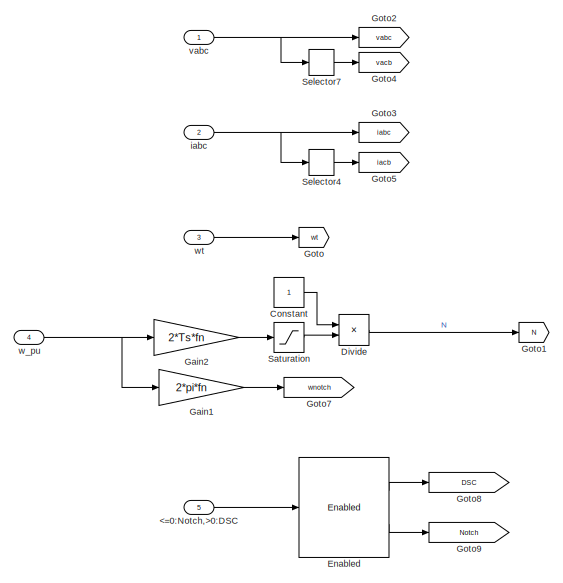
[diagram: abc_dq_single_notch_dsc_sfunction - part 1/2, middle left region]
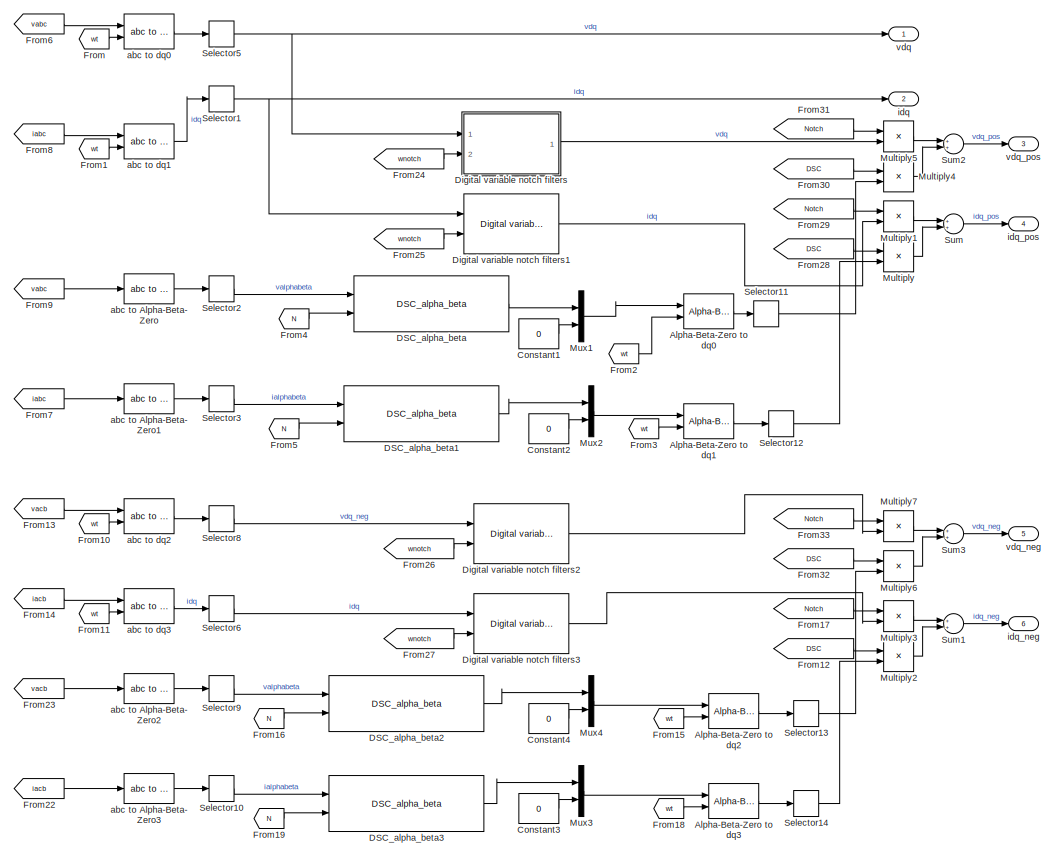
[diagram: abc_dq_single_notch_dsc_sfunction - part 2/2, right side, full height]
BLOCK [SubSystem] abc_dq_single_notch_dsc_sfunction
  Ports = [5, 6]
  RequestExecContextInheritance = off
BLOCK [Inport] abc_dq_single_notch_dsc_sfunction/<=0:Notch,>0:DSC
  IconDisplay = Port number
  Port = 5
BLOCK [Reference] abc_dq_single_notch_dsc_sfunction/Alpha-Beta-Zero to dq0  REF=powerlib_meascontrol/Transformations/Alpha-Beta-Zero
to dq0
  Ports = [2, 1]
  SourceBlock = powerlib_meascontrol/Transformations/Alpha-Beta-Zero\nto dq0
  SourceProductBaseCode = PS
  SourceProductName = Simscape Power Systems
  SourceType = Alpha-Beta-Zero to dq0 Transformation
BLOCK [Reference] abc_dq_single_notch_dsc_sfunction/Alpha-Beta-Zero to dq1  REF=powerlib_meascontrol/Transformations/Alpha-Beta-Zero
to dq0
  Ports = [2, 1]
  SourceBlock = powerlib_meascontrol/Transformations/Alpha-Beta-Zero\nto dq0
  SourceProductBaseCode = PS
  SourceProductName = Simscape Power Systems
  SourceType = Alpha-Beta-Zero to dq0 Transformation
BLOCK [Reference] abc_dq_single_notch_dsc_sfunction/Alpha-Beta-Zero to dq2  REF=powerlib_meascontrol/Transformations/Alpha-Beta-Zero
to dq0
  Ports = [2, 1]
  SourceBlock = powerlib_meascontrol/Transformations/Alpha-Beta-Zero\nto dq0
  SourceProductBaseCode = PS
  SourceProductName = Simscape Power Systems
  SourceType = Alpha-Beta-Zero to dq0 Transformation
BLOCK [Reference] abc_dq_single_notch_dsc_sfunction/Alpha-Beta-Zero to dq3  REF=powerlib_meascontrol/Transformations/Alpha-Beta-Zero
to dq0
  Ports = [2, 1]
  SourceBlock = powerlib_meascontrol/Transformations/Alpha-Beta-Zero\nto dq0
  SourceProductBaseCode = PS
  SourceProductName = Simscape Power Systems
  SourceType = Alpha-Beta-Zero to dq0 Transformation
BLOCK [Constant] abc_dq_single_notch_dsc_sfunction/Constant
BLOCK [Constant] abc_dq_single_notch_dsc_sfunction/Constant1
  Value = 0
BLOCK [Constant] abc_dq_single_notch_dsc_sfunction/Constant2
  Value = 0
BLOCK [Constant] abc_dq_single_notch_dsc_sfunction/Constant3
  Value = 0
BLOCK [Constant] abc_dq_single_notch_dsc_sfunction/Constant4
  Value = 0
BLOCK [Reference] abc_dq_single_notch_dsc_sfunction/DSC_alpha_beta  REF=pwrsysBasic/DSC_alpha_beta
  Ports = [2, 1]
  SourceBlock = pwrsysBasic/DSC_alpha_beta
  SourceProductName = NTNU Power Systems
  SourceType = Delayed signal cancellation of a scalar
BLOCK [Reference] abc_dq_single_notch_dsc_sfunction/DSC_alpha_beta1  REF=pwrsysBasic/DSC_alpha_beta
  Ports = [2, 1]
  SourceBlock = pwrsysBasic/DSC_alpha_beta
  SourceProductName = NTNU Power Systems
  SourceType = Delayed signal cancellation of a scalar
BLOCK [Reference] abc_dq_single_notch_dsc_sfunction/DSC_alpha_beta2  REF=pwrsysBasic/DSC_alpha_beta
  Ports = [2, 1]
  SourceBlock = pwrsysBasic/DSC_alpha_beta
  SourceProductName = NTNU Power Systems
  SourceType = Delayed signal cancellation of a scalar
BLOCK [Reference] abc_dq_single_notch_dsc_sfunction/DSC_alpha_beta3  REF=pwrsysBasic/DSC_alpha_beta
  Ports = [2, 1]
  SourceBlock = pwrsysBasic/DSC_alpha_beta
  SourceProductName = NTNU Power Systems
  SourceType = Delayed signal cancellation of a scalar
BLOCK [SubSystem] abc_dq_single_notch_dsc_sfunction/Digital variable notch filters
  Ports = [2, 1]
  RequestExecContextInheritance = off
BLOCK [Constant] abc_dq_single_notch_dsc_sfunction/Digital variable notch filters/Constant
  Value = 0
BLOCK [Constant] abc_dq_single_notch_dsc_sfunction/Digital variable notch filters/Constant1
  Value = zeta
BLOCK [Constant] abc_dq_single_notch_dsc_sfunction/Digital variable notch filters/Constant2
  Value = 0
BLOCK [Constant] abc_dq_single_notch_dsc_sfunction/Digital variable notch filters/Constant3
  Value = zeta
BLOCK [Demux] abc_dq_single_notch_dsc_sfunction/Digital variable notch filters/Demux
  DisplayOption = bar
  Outputs = 2
  Ports = [1, 2]
BLOCK [Reference] abc_dq_single_notch_dsc_sfunction/Digital variable notch filters/Discrete Notch  REF=pwrsysBasic/Discrete Notch
  Ports = [4, 1]
  SourceBlock = pwrsysBasic/Discrete Notch
  SourceProductName = NTNU Power Systems
  SourceType = Discrete Notch with time-varying parameters
BLOCK [Reference] abc_dq_single_notch_dsc_sfunction/Digital variable notch filters/Discrete Notch1  REF=pwrsysBasic/Discrete Notch
  Ports = [4, 1]
  SourceBlock = pwrsysBasic/Discrete Notch
  SourceProductName = NTNU Power Systems
  SourceType = Discrete Notch with time-varying parameters
BLOCK [Mux] abc_dq_single_notch_dsc_sfunction/Digital variable notch filters/Mux
  DisplayOption = bar
  Inputs = 2
  Ports = [2, 1]
BLOCK [Inport] abc_dq_single_notch_dsc_sfunction/Digital variable notch filters/dq_in
  IconDisplay = Port number
BLOCK [Outport] abc_dq_single_notch_dsc_sfunction/Digital variable notch filters/dq_out
  IconDisplay = Port number
BLOCK [Inport] abc_dq_single_notch_dsc_sfunction/Digital variable notch filters/wnotch
  IconDisplay = Port number
  Port = 2
BLOCK [Reference] abc_dq_single_notch_dsc_sfunction/Digital variable notch filters1  REF=pwrsysTransf/abc_dq_single_notch_dsc_sfunction/Digital variable notch filters
  Ports = [2, 1]
  SourceBlock = pwrsysTransf/abc_dq_single_notch_dsc_sfunction/Digital variable notch filters
  SourceProductName = NTNU Power Systems
  SourceType = SubSystem
BLOCK [Reference] abc_dq_single_notch_dsc_sfunction/Digital variable notch filters2  REF=pwrsysTransf/abc_dq_single_notch_dsc_sfunction/Digital variable notch filters
  Ports = [2, 1]
  SourceBlock = pwrsysTransf/abc_dq_single_notch_dsc_sfunction/Digital variable notch filters
  SourceProductName = NTNU Power Systems
  SourceType = SubSystem
BLOCK [Reference] abc_dq_single_notch_dsc_sfunction/Digital variable notch filters3  REF=pwrsysTransf/abc_dq_single_notch_dsc_sfunction/Digital variable notch filters
  Ports = [2, 1]
  SourceBlock = pwrsysTransf/abc_dq_single_notch_dsc_sfunction/Digital variable notch filters
  SourceProductName = NTNU Power Systems
  SourceType = SubSystem
BLOCK [Product] abc_dq_single_notch_dsc_sfunction/Divide
  InputSameDT = off
  Inputs = */
  OutDataTypeStr = Inherit: Inherit via internal rule
  Ports = [2, 1]
  RndMeth = Floor
  SaturateOnIntegerOverflow = off
BLOCK [Reference] abc_dq_single_notch_dsc_sfunction/Enabled  REF=pwrsysBasic/Enabled
  Ports = [1, 2]
  SourceBlock = pwrsysBasic/Enabled
  SourceProductName = NTNU Power Systems
  SourceType = Enabled block
BLOCK [From] abc_dq_single_notch_dsc_sfunction/From
  GotoTag = wt
BLOCK [From] abc_dq_single_notch_dsc_sfunction/From1
  GotoTag = wt
BLOCK [From] abc_dq_single_notch_dsc_sfunction/From10
  GotoTag = wt
BLOCK [From] abc_dq_single_notch_dsc_sfunction/From11
  GotoTag = wt
BLOCK [From] abc_dq_single_notch_dsc_sfunction/From12
  GotoTag = DSC
BLOCK [From] abc_dq_single_notch_dsc_sfunction/From13
  GotoTag = vacb
BLOCK [From] abc_dq_single_notch_dsc_sfunction/From14
  GotoTag = iacb
BLOCK [From] abc_dq_single_notch_dsc_sfunction/From15
  GotoTag = wt
BLOCK [From] abc_dq_single_notch_dsc_sfunction/From16
  GotoTag = N
BLOCK [From] abc_dq_single_notch_dsc_sfunction/From17
  GotoTag = Notch
BLOCK [From] abc_dq_single_notch_dsc_sfunction/From18
  GotoTag = wt
BLOCK [From] abc_dq_single_notch_dsc_sfunction/From19
  GotoTag = N
BLOCK [From] abc_dq_single_notch_dsc_sfunction/From2
  GotoTag = wt
BLOCK [From] abc_dq_single_notch_dsc_sfunction/From22
  GotoTag = iacb
BLOCK [From] abc_dq_single_notch_dsc_sfunction/From23
  GotoTag = vacb
BLOCK [From] abc_dq_single_notch_dsc_sfunction/From24
  GotoTag = wnotch
BLOCK [From] abc_dq_single_notch_dsc_sfunction/From25
  GotoTag = wnotch
BLOCK [From] abc_dq_single_notch_dsc_sfunction/From26
  GotoTag = wnotch
BLOCK [From] abc_dq_single_notch_dsc_sfunction/From27
  GotoTag = wnotch
BLOCK [From] abc_dq_single_notch_dsc_sfunction/From28
  GotoTag = DSC
BLOCK [From] abc_dq_single_notch_dsc_sfunction/From29
  GotoTag = Notch
BLOCK [From] abc_dq_single_notch_dsc_sfunction/From3
  GotoTag = wt
BLOCK [From] abc_dq_single_notch_dsc_sfunction/From30
  GotoTag = DSC
BLOCK [From] abc_dq_single_notch_dsc_sfunction/From31
  GotoTag = Notch
BLOCK [From] abc_dq_single_notch_dsc_sfunction/From32
  GotoTag = DSC
BLOCK [From] abc_dq_single_notch_dsc_sfunction/From33
  GotoTag = Notch
BLOCK [From] abc_dq_single_notch_dsc_sfunction/From4
  GotoTag = N
BLOCK [From] abc_dq_single_notch_dsc_sfunction/From5
  GotoTag = N
BLOCK [From] abc_dq_single_notch_dsc_sfunction/From6
  GotoTag = vabc
BLOCK [From] abc_dq_single_notch_dsc_sfunction/From7
  GotoTag = iabc
BLOCK [From] abc_dq_single_notch_dsc_sfunction/From8
  GotoTag = iabc
BLOCK [From] abc_dq_single_notch_dsc_sfunction/From9
  GotoTag = vabc
BLOCK [Gain] abc_dq_single_notch_dsc_sfunction/Gain1
  Gain = 2*pi*fn
  OutDataTypeStr = Inherit: Inherit via internal rule
  ParamDataTypeStr = Inherit: Inherit via internal rule
  SaturateOnIntegerOverflow = off
BLOCK [Gain] abc_dq_single_notch_dsc_sfunction/Gain2
  Gain = 2*Ts*fn
  OutDataTypeStr = Inherit: Inherit via internal rule
  ParamDataTypeStr = Inherit: Inherit via internal rule
  SaturateOnIntegerOverflow = off
BLOCK [Goto] abc_dq_single_notch_dsc_sfunction/Goto
  GotoTag = wt
BLOCK [Goto] abc_dq_single_notch_dsc_sfunction/Goto1
  GotoTag = N
BLOCK [Goto] abc_dq_single_notch_dsc_sfunction/Goto2
  GotoTag = vabc
BLOCK [Goto] abc_dq_single_notch_dsc_sfunction/Goto3
  GotoTag = iabc
BLOCK [Goto] abc_dq_single_notch_dsc_sfunction/Goto4
  GotoTag = vacb
BLOCK [Goto] abc_dq_single_notch_dsc_sfunction/Goto5
  GotoTag = iacb
BLOCK [Goto] abc_dq_single_notch_dsc_sfunction/Goto7
  GotoTag = wnotch
BLOCK [Goto] abc_dq_single_notch_dsc_sfunction/Goto8
  GotoTag = DSC
BLOCK [Goto] abc_dq_single_notch_dsc_sfunction/Goto9
  GotoTag = Notch
BLOCK [Product] abc_dq_single_notch_dsc_sfunction/Multiply
  InputSameDT = off
  OutDataTypeStr = Inherit: Inherit via internal rule
  Ports = [2, 1]
  RndMeth = Floor
  SaturateOnIntegerOverflow = off
BLOCK [Product] abc_dq_single_notch_dsc_sfunction/Multiply1
  InputSameDT = off
  OutDataTypeStr = Inherit: Inherit via internal rule
  Ports = [2, 1]
  RndMeth = Floor
  SaturateOnIntegerOverflow = off
BLOCK [Product] abc_dq_single_notch_dsc_sfunction/Multiply2
  InputSameDT = off
  OutDataTypeStr = Inherit: Inherit via internal rule
  Ports = [2, 1]
  RndMeth = Floor
  SaturateOnIntegerOverflow = off
BLOCK [Product] abc_dq_single_notch_dsc_sfunction/Multiply3
  InputSameDT = off
  OutDataTypeStr = Inherit: Inherit via internal rule
  Ports = [2, 1]
  RndMeth = Floor
  SaturateOnIntegerOverflow = off
BLOCK [Product] abc_dq_single_notch_dsc_sfunction/Multiply4
  InputSameDT = off
  OutDataTypeStr = Inherit: Inherit via internal rule
  Ports = [2, 1]
  RndMeth = Floor
  SaturateOnIntegerOverflow = off
BLOCK [Product] abc_dq_single_notch_dsc_sfunction/Multiply5
  InputSameDT = off
  OutDataTypeStr = Inherit: Inherit via internal rule
  Ports = [2, 1]
  RndMeth = Floor
  SaturateOnIntegerOverflow = off
BLOCK [Product] abc_dq_single_notch_dsc_sfunction/Multiply6
  InputSameDT = off
  OutDataTypeStr = Inherit: Inherit via internal rule
  Ports = [2, 1]
  RndMeth = Floor
  SaturateOnIntegerOverflow = off
BLOCK [Product] abc_dq_single_notch_dsc_sfunction/Multiply7
  InputSameDT = off
  OutDataTypeStr = Inherit: Inherit via internal rule
  Ports = [2, 1]
  RndMeth = Floor
  SaturateOnIntegerOverflow = off
BLOCK [Mux] abc_dq_single_notch_dsc_sfunction/Mux1
  DisplayOption = bar
  Inputs = [2 1]
  Ports = [2, 1]
BLOCK [Mux] abc_dq_single_notch_dsc_sfunction/Mux2
  DisplayOption = bar
  Inputs = [2 1]
  Ports = [2, 1]
BLOCK [Mux] abc_dq_single_notch_dsc_sfunction/Mux3
  DisplayOption = bar
  Inputs = [2 1]
  Ports = [2, 1]
BLOCK [Mux] abc_dq_single_notch_dsc_sfunction/Mux4
  DisplayOption = bar
  Inputs = [2 1]
  Ports = [2, 1]
BLOCK [Saturate] abc_dq_single_notch_dsc_sfunction/Saturation
  InputPortMap = u0
  LowerLimit = 0.000001
  Ports = [1, 1]
  UpperLimit = inf
BLOCK [Selector] abc_dq_single_notch_dsc_sfunction/Selector1
  IndexOptions = Index vector (dialog)
  Indices = [1 2]
  InputPortWidth = 3
  OutputSizes = 1
  Ports = [1, 1]
BLOCK [Selector] abc_dq_single_notch_dsc_sfunction/Selector10
  IndexOptions = Index vector (dialog)
  Indices = [1 2]
  InputPortWidth = 3
  OutputSizes = 1
  Ports = [1, 1]
BLOCK [Selector] abc_dq_single_notch_dsc_sfunction/Selector11
  IndexOptions = Index vector (dialog)
  Indices = [1 2]
  InputPortWidth = 3
  OutputSizes = 1
  Ports = [1, 1]
BLOCK [Selector] abc_dq_single_notch_dsc_sfunction/Selector12
  IndexOptions = Index vector (dialog)
  Indices = [1 2]
  InputPortWidth = 3
  OutputSizes = 1
  Ports = [1, 1]
BLOCK [Selector] abc_dq_single_notch_dsc_sfunction/Selector13
  IndexOptions = Index vector (dialog)
  Indices = [1 2]
  InputPortWidth = 3
  OutputSizes = 1
  Ports = [1, 1]
BLOCK [Selector] abc_dq_single_notch_dsc_sfunction/Selector14
  IndexOptions = Index vector (dialog)
  Indices = [1 2]
  InputPortWidth = 3
  OutputSizes = 1
  Ports = [1, 1]
BLOCK [Selector] abc_dq_single_notch_dsc_sfunction/Selector2
  IndexOptions = Index vector (dialog)
  Indices = [1 2]
  InputPortWidth = 3
  OutputSizes = 1
  Ports = [1, 1]
BLOCK [Selector] abc_dq_single_notch_dsc_sfunction/Selector3
  IndexOptions = Index vector (dialog)
  Indices = [1 2]
  InputPortWidth = 3
  OutputSizes = 1
  Ports = [1, 1]
BLOCK [Selector] abc_dq_single_notch_dsc_sfunction/Selector4
  IndexOptions = Index vector (dialog)
  Indices = [1 3 2]
  InputPortWidth = 3
  OutputSizes = 1
  Ports = [1, 1]
BLOCK [Selector] abc_dq_single_notch_dsc_sfunction/Selector5
  IndexOptions = Index vector (dialog)
  Indices = [1 2]
  InputPortWidth = 3
  OutputSizes = 1
  Ports = [1, 1]
BLOCK [Selector] abc_dq_single_notch_dsc_sfunction/Selector6
  IndexOptions = Index vector (dialog)
  Indices = [1 2]
  InputPortWidth = 3
  OutputSizes = 1
  Ports = [1, 1]
BLOCK [Selector] abc_dq_single_notch_dsc_sfunction/Selector7
  IndexOptions = Index vector (dialog)
  Indices = [1 3 2]
  InputPortWidth = 3
  OutputSizes = 1
  Ports = [1, 1]
BLOCK [Selector] abc_dq_single_notch_dsc_sfunction/Selector8
  IndexOptions = Index vector (dialog)
  Indices = [1 2]
  InputPortWidth = 3
  OutputSizes = 1
  Ports = [1, 1]
BLOCK [Selector] abc_dq_single_notch_dsc_sfunction/Selector9
  IndexOptions = Index vector (dialog)
  Indices = [1 2]
  InputPortWidth = 3
  OutputSizes = 1
  Ports = [1, 1]
BLOCK [Sum] abc_dq_single_notch_dsc_sfunction/Sum
  InputSameDT = off
  OutDataTypeStr = Inherit: Inherit via internal rule
  Ports = [2, 1]
  SaturateOnIntegerOverflow = off
BLOCK [Sum] abc_dq_single_notch_dsc_sfunction/Sum1
  InputSameDT = off
  OutDataTypeStr = Inherit: Inherit via internal rule
  Ports = [2, 1]
  SaturateOnIntegerOverflow = off
BLOCK [Sum] abc_dq_single_notch_dsc_sfunction/Sum2
  InputSameDT = off
  OutDataTypeStr = Inherit: Inherit via internal rule
  Ports = [2, 1]
  SaturateOnIntegerOverflow = off
BLOCK [Sum] abc_dq_single_notch_dsc_sfunction/Sum3
  InputSameDT = off
  OutDataTypeStr = Inherit: Inherit via internal rule
  Ports = [2, 1]
  SaturateOnIntegerOverflow = off
BLOCK [Reference] abc_dq_single_notch_dsc_sfunction/abc to Alpha-Beta-Zero  REF=powerlib_meascontrol/Transformations/abc to
Alpha-Beta-Zero
  Ports = [1, 1]
  SourceBlock = powerlib_meascontrol/Transformations/abc to\nAlpha-Beta-Zero
  SourceProductBaseCode = PS
  SourceProductName = Simscape Power Systems
  SourceType = abc to Alpha-Beta-Zero Transformation
BLOCK [Reference] abc_dq_single_notch_dsc_sfunction/abc to Alpha-Beta-Zero1  REF=powerlib_meascontrol/Transformations/abc to
Alpha-Beta-Zero
  Ports = [1, 1]
  SourceBlock = powerlib_meascontrol/Transformations/abc to\nAlpha-Beta-Zero
  SourceProductBaseCode = PS
  SourceProductName = Simscape Power Systems
  SourceType = abc to Alpha-Beta-Zero Transformation
BLOCK [Reference] abc_dq_single_notch_dsc_sfunction/abc to Alpha-Beta-Zero2  REF=powerlib_meascontrol/Transformations/abc to
Alpha-Beta-Zero
  Ports = [1, 1]
  SourceBlock = powerlib_meascontrol/Transformations/abc to\nAlpha-Beta-Zero
  SourceProductBaseCode = PS
  SourceProductName = Simscape Power Systems
  SourceType = abc to Alpha-Beta-Zero Transformation
BLOCK [Reference] abc_dq_single_notch_dsc_sfunction/abc to Alpha-Beta-Zero3  REF=powerlib_meascontrol/Transformations/abc to
Alpha-Beta-Zero
  Ports = [1, 1]
  SourceBlock = powerlib_meascontrol/Transformations/abc to\nAlpha-Beta-Zero
  SourceProductBaseCode = PS
  SourceProductName = Simscape Power Systems
  SourceType = abc to Alpha-Beta-Zero Transformation
BLOCK [Reference] abc_dq_single_notch_dsc_sfunction/abc to dq0  REF=powerlib_meascontrol/Transformations/abc to dq0
  Ports = [2, 1]
  SourceBlock = powerlib_meascontrol/Transformations/abc to dq0
  SourceProductBaseCode = PS
  SourceProductName = Simscape Power Systems
  SourceType = abc to dq0 Transformation
BLOCK [Reference] abc_dq_single_notch_dsc_sfunction/abc to dq1  REF=powerlib_meascontrol/Transformations/abc to dq0
  Ports = [2, 1]
  SourceBlock = powerlib_meascontrol/Transformations/abc to dq0
  SourceProductBaseCode = PS
  SourceProductName = Simscape Power Systems
  SourceType = abc to dq0 Transformation
BLOCK [Reference] abc_dq_single_notch_dsc_sfunction/abc to dq2  REF=powerlib_meascontrol/Transformations/abc to dq0
  Ports = [2, 1]
  SourceBlock = powerlib_meascontrol/Transformations/abc to dq0
  SourceProductBaseCode = PS
  SourceProductName = Simscape Power Systems
  SourceType = abc to dq0 Transformation
BLOCK [Reference] abc_dq_single_notch_dsc_sfunction/abc to dq3  REF=powerlib_meascontrol/Transformations/abc to dq0
  Ports = [2, 1]
  SourceBlock = powerlib_meascontrol/Transformations/abc to dq0
  SourceProductBaseCode = PS
  SourceProductName = Simscape Power Systems
  SourceType = abc to dq0 Transformation
BLOCK [Inport] abc_dq_single_notch_dsc_sfunction/iabc
  IconDisplay = Port number
  Port = 2
BLOCK [Outport] abc_dq_single_notch_dsc_sfunction/idq
  IconDisplay = Port number
  Port = 2
BLOCK [Outport] abc_dq_single_notch_dsc_sfunction/idq_neg
  IconDisplay = Port number
  Port = 6
BLOCK [Outport] abc_dq_single_notch_dsc_sfunction/idq_pos
  IconDisplay = Port number
  Port = 4
BLOCK [Inport] abc_dq_single_notch_dsc_sfunction/vabc
  IconDisplay = Port number
BLOCK [Outport] abc_dq_single_notch_dsc_sfunction/vdq
  IconDisplay = Port number
BLOCK [Outport] abc_dq_single_notch_dsc_sfunction/vdq_neg
  IconDisplay = Port number
  Port = 5
BLOCK [Outport] abc_dq_single_notch_dsc_sfunction/vdq_pos
  IconDisplay = Port number
  Port = 3
BLOCK [Inport] abc_dq_single_notch_dsc_sfunction/w_pu
  IconDisplay = Port number
  Port = 4
BLOCK [Inport] abc_dq_single_notch_dsc_sfunction/wt
  IconDisplay = Port number
  Port = 3
BLOCK [SubSystem] abc_dq_with_AMA
  Ports = [4, 3]
  RequestExecContextInheritance = off
BLOCK [Reference] abc_dq_with_AMA/AMA with retrieval pointer driven buffer1  REF=pwrsysAMA/AMA with retrieval pointer driven buffer
  Ports = [2, 3]
  SourceBlock = pwrsysAMA/AMA with retrieval pointer driven buffer
  SourceType = AMA with retrieval pointer driven buffer
BLOCK [Reference] abc_dq_with_AMA/AMA with retrieval pointer driven buffer2  REF=pwrsysAMA/AMA with retrieval pointer driven buffer
  Ports = [2, 3]
  SourceBlock = pwrsysAMA/AMA with retrieval pointer driven buffer
  SourceType = AMA with retrieval pointer driven buffer
BLOCK [Reference] abc_dq_with_AMA/AMA with retrieval pointer driven buffer3  REF=pwrsysAMA/AMA with retrieval pointer driven buffer
  Ports = [2, 3]
  SourceBlock = pwrsysAMA/AMA with retrieval pointer driven buffer
  SourceType = AMA with retrieval pointer driven buffer
BLOCK [Reference] abc_dq_with_AMA/AMA with retrieval pointer driven buffer4  REF=pwrsysAMA/AMA with retrieval pointer driven buffer
  Ports = [2, 3]
  SourceBlock = pwrsysAMA/AMA with retrieval pointer driven buffer
  SourceType = AMA with retrieval pointer driven buffer
BLOCK [BusCreator] abc_dq_with_AMA/Bus Creator
  DisplayOption = bar
  InheritFromInputs = on
  Inputs = 4
  Ports = [4, 1]
BLOCK [Constant] abc_dq_with_AMA/Constant
  Value = 2*Ts
BLOCK [Constant] abc_dq_with_AMA/Constant1
BLOCK [Demux] abc_dq_with_AMA/Demux
  DisplayOption = bar
  Outputs = 2
  Ports = [1, 2]
BLOCK [Demux] abc_dq_with_AMA/Demux1
  DisplayOption = bar
  Outputs = 2
  Ports = [1, 2]
BLOCK [Reference] abc_dq_with_AMA/Digital first order LPF  REF=pwrsysBasic/Digital first order LPF
  Ports = [1, 1]
  SourceBlock = pwrsysBasic/Digital first order LPF
  SourceProductName = NTNU Power Systems
  SourceType = Digital first-order low-pass filter
BLOCK [Reference] abc_dq_with_AMA/Digital first order LPF1  REF=pwrsysBasic/Digital first order LPF
  Ports = [1, 1]
  SourceBlock = pwrsysBasic/Digital first order LPF
  SourceProductName = NTNU Power Systems
  SourceType = Digital first-order low-pass filter
BLOCK [Product] abc_dq_with_AMA/Divide
  InputSameDT = off
  Inputs = */
  OutDataTypeStr = Inherit: Inherit via internal rule
  Ports = [2, 1]
  RndMeth = Floor
  SaturateOnIntegerOverflow = off
BLOCK [From] abc_dq_with_AMA/From
  GotoTag = N
BLOCK [From] abc_dq_with_AMA/From1
  GotoTag = N
BLOCK [From] abc_dq_with_AMA/From2
  GotoTag = N
BLOCK [From] abc_dq_with_AMA/From3
  GotoTag = N
BLOCK [Gain] abc_dq_with_AMA/Gain
  Gain = fn
  OutDataTypeStr = Inherit: Inherit via internal rule
  ParamDataTypeStr = Inherit: Inherit via internal rule
  SaturateOnIntegerOverflow = off
BLOCK [Goto] abc_dq_with_AMA/Goto
  GotoTag = N
BLOCK [Mux] abc_dq_with_AMA/Mux
  DisplayOption = bar
  Inputs = 2
  Ports = [2, 1]
BLOCK [Mux] abc_dq_with_AMA/Mux1
  DisplayOption = bar
  Inputs = 2
  Ports = [2, 1]
BLOCK [Product] abc_dq_with_AMA/Product
  InputSameDT = off
  OutDataTypeStr = Inherit: Inherit via internal rule
  Ports = [2, 1]
  RndMeth = Floor
  SaturateOnIntegerOverflow = off
BLOCK [RateTransition] abc_dq_with_AMA/Rate Transition1
  OutPortSampleTime = Ts
BLOCK [RateTransition] abc_dq_with_AMA/Rate Transition2
  OutPortSampleTime = Ts
BLOCK [RateTransition] abc_dq_with_AMA/Rate Transition3
  InitialCondition = 1
  OutPortSampleTime = Ts
BLOCK [RateTransition] abc_dq_with_AMA/Rate Transition4
  OutPortSampleTime = Ts
BLOCK [Saturate] abc_dq_with_AMA/Saturation
  InputPortMap = u0
  LowerLimit = fmin
  Ports = [1, 1]
  UpperLimit = fmax
BLOCK [Selector] abc_dq_with_AMA/Selector4
  IndexOptions = Index vector (dialog)
  Indices = [1 2]
  InputPortWidth = 3
  OutputSizes = 1
  Ports = [1, 1]
BLOCK [Selector] abc_dq_with_AMA/Selector5
  IndexOptions = Index vector (dialog)
  Indices = [1 2]
  InputPortWidth = 3
  OutputSizes = 1
  Ports = [1, 1]
BLOCK [Terminator] abc_dq_with_AMA/Terminator1
BLOCK [Terminator] abc_dq_with_AMA/Terminator2
BLOCK [Terminator] abc_dq_with_AMA/Terminator3
BLOCK [Terminator] abc_dq_with_AMA/Terminator4
BLOCK [Terminator] abc_dq_with_AMA/Terminator5
BLOCK [Terminator] abc_dq_with_AMA/Terminator6
BLOCK [Terminator] abc_dq_with_AMA/Terminator7
BLOCK [Terminator] abc_dq_with_AMA/Terminator8
BLOCK [Reference] abc_dq_with_AMA/abc to dq0  REF=powerlib_meascontrol/Transformations/abc to dq0
  Ports = [2, 1]
  SourceBlock = powerlib_meascontrol/Transformations/abc to dq0
  SourceProductBaseCode = PS
  SourceProductName = Simscape Power Systems
  SourceType = abc to dq0 Transformation
BLOCK [Reference] abc_dq_with_AMA/abc to dq1  REF=powerlib_meascontrol/Transformations/abc to dq0
  Ports = [2, 1]
  SourceBlock = powerlib_meascontrol/Transformations/abc to dq0
  SourceProductBaseCode = PS
  SourceProductName = Simscape Power Systems
  SourceType = abc to dq0 Transformation
BLOCK [Inport] abc_dq_with_AMA/iabc
  IconDisplay = Port number
  Port = 2
BLOCK [Outport] abc_dq_with_AMA/idq
  IconDisplay = Port number
  Port = 2
BLOCK [Outport] abc_dq_with_AMA/m
  IconDisplay = Port number
  Port = 3
BLOCK [Inport] abc_dq_with_AMA/vabc
  IconDisplay = Port number
BLOCK [Outport] abc_dq_with_AMA/vdq
  IconDisplay = Port number
BLOCK [Inport] abc_dq_with_AMA/w_pu
  IconDisplay = Port number
  Port = 4
BLOCK [Inport] abc_dq_with_AMA/wt
  IconDisplay = Port number
  Port = 3
BLOCK [SubSystem] dqz to xyz
  Ports = [2, 1]
  RequestExecContextInheritance = off
BLOCK [Demux] dqz to xyz/Demux
  DisplayOption = bar
  Outputs = 3
  Ports = [1, 3]
BLOCK [Demux] dqz to xyz/Demux1
  DisplayOption = bar
  Outputs = 2
  Ports = [1, 2]
BLOCK [Mux] dqz to xyz/Mux
  DisplayOption = bar
  Inputs = 3
  Ports = [3, 1]
BLOCK [Product] dqz to xyz/Product4
  InputSameDT = off
  OutDataTypeStr = Inherit: Inherit via internal rule
  Ports = [2, 1]
  RndMeth = Floor
  SaturateOnIntegerOverflow = off
BLOCK [Product] dqz to xyz/Product5
  InputSameDT = off
  OutDataTypeStr = Inherit: Inherit via internal rule
  Ports = [2, 1]
  RndMeth = Floor
  SaturateOnIntegerOverflow = off
BLOCK [Product] dqz to xyz/Product6
  InputSameDT = off
  OutDataTypeStr = Inherit: Inherit via internal rule
  Ports = [2, 1]
  RndMeth = Floor
  SaturateOnIntegerOverflow = off
BLOCK [Product] dqz to xyz/Product7
  InputSameDT = off
  OutDataTypeStr = Inherit: Inherit via internal rule
  Ports = [2, 1]
  RndMeth = Floor
  SaturateOnIntegerOverflow = off
BLOCK [Sum] dqz to xyz/Sum1
  InputSameDT = off
  Inputs = +-
  OutDataTypeStr = Inherit: Inherit via internal rule
  Ports = [2, 1]
  SaturateOnIntegerOverflow = off
BLOCK [Sum] dqz to xyz/Sum2
  InputSameDT = off
  OutDataTypeStr = Inherit: Inherit via internal rule
  Ports = [2, 1]
  SaturateOnIntegerOverflow = off
BLOCK [Inport] dqz to xyz/dqz
  IconDisplay = Port number
BLOCK [Inport] dqz to xyz/scwt
  IconDisplay = Port number
  Port = 2
BLOCK [Outport] dqz to xyz/xyz
  IconDisplay = Port number
BLOCK [SubSystem] xyz to abc
  Ports = [1, 1]
  RequestExecContextInheritance = off
BLOCK [Demux] xyz to abc/Demux
  DisplayOption = bar
  Outputs = 3
  Ports = [1, 3]
BLOCK [Gain] xyz to abc/Gain
  Gain = d
  OutDataTypeStr = Inherit: Inherit via internal rule
  ParamDataTypeStr = Inherit: Inherit via internal rule
  SaturateOnIntegerOverflow = off
BLOCK [Gain] xyz to abc/Gain1
  Gain = c
  OutDataTypeStr = Inherit: Inherit via internal rule
  ParamDataTypeStr = Inherit: Inherit via internal rule
  SaturateOnIntegerOverflow = off
BLOCK [Gain] xyz to abc/Gain2
  Gain = b
  OutDataTypeStr = Inherit: Inherit via internal rule
  ParamDataTypeStr = Inherit: Inherit via internal rule
  SaturateOnIntegerOverflow = off
BLOCK [Gain] xyz to abc/Gain3
  Gain = a
  OutDataTypeStr = Inherit: Inherit via internal rule
  ParamDataTypeStr = Inherit: Inherit via internal rule
  SaturateOnIntegerOverflow = off
BLOCK [Mux] xyz to abc/Mux
  DisplayOption = bar
  Inputs = 3
  Ports = [3, 1]
BLOCK [Sum] xyz to abc/Sum3
  InputSameDT = off
  Inputs = -+
  OutDataTypeStr = Inherit: Inherit via internal rule
  Ports = [2, 1]
  SaturateOnIntegerOverflow = off
BLOCK [Sum] xyz to abc/Sum4
  InputSameDT = off
  Inputs = -+
  OutDataTypeStr = Inherit: Inherit via internal rule
  Ports = [2, 1]
  SaturateOnIntegerOverflow = off
BLOCK [Sum] xyz to abc/Sum5
  InputSameDT = off
  OutDataTypeStr = Inherit: Inherit via internal rule
  Ports = [2, 1]
  SaturateOnIntegerOverflow = off
BLOCK [Sum] xyz to abc/Sum6
  InputSameDT = off
  OutDataTypeStr = Inherit: Inherit via internal rule
  Ports = [2, 1]
  SaturateOnIntegerOverflow = off
BLOCK [Outport] xyz to abc/abc
  IconDisplay = Port number
BLOCK [Inport] xyz to abc/xyz
  IconDisplay = Port number
BLOCK [SubSystem] xyz to dqz
  Ports = [2, 1]
  RequestExecContextInheritance = off
BLOCK [Demux] xyz to dqz/Demux
  DisplayOption = bar
  Outputs = 3
  Ports = [1, 3]
BLOCK [Demux] xyz to dqz/Demux1
  DisplayOption = bar
  Outputs = 2
  Ports = [1, 2]
BLOCK [Mux] xyz to dqz/Mux
  DisplayOption = bar
  Inputs = 3
  Ports = [3, 1]
BLOCK [Product] xyz to dqz/Product4
  InputSameDT = off
  OutDataTypeStr = Inherit: Inherit via internal rule
  Ports = [2, 1]
  RndMeth = Floor
  SaturateOnIntegerOverflow = off
BLOCK [Product] xyz to dqz/Product5
  InputSameDT = off
  OutDataTypeStr = Inherit: Inherit via internal rule
  Ports = [2, 1]
  RndMeth = Floor
  SaturateOnIntegerOverflow = off
BLOCK [Product] xyz to dqz/Product6
  InputSameDT = off
  OutDataTypeStr = Inherit: Inherit via internal rule
  Ports = [2, 1]
  RndMeth = Floor
  SaturateOnIntegerOverflow = off
BLOCK [Product] xyz to dqz/Product7
  InputSameDT = off
  OutDataTypeStr = Inherit: Inherit via internal rule
  Ports = [2, 1]
  RndMeth = Floor
  SaturateOnIntegerOverflow = off
BLOCK [Sum] xyz to dqz/Sum1
  InputSameDT = off
  OutDataTypeStr = Inherit: Inherit via internal rule
  Ports = [2, 1]
  SaturateOnIntegerOverflow = off
BLOCK [Sum] xyz to dqz/Sum2
  InputSameDT = off
  Inputs = +-
  OutDataTypeStr = Inherit: Inherit via internal rule
  Ports = [2, 1]
  SaturateOnIntegerOverflow = off
BLOCK [Outport] xyz to dqz/dqz
  IconDisplay = Port number
BLOCK [Inport] xyz to dqz/scwt
  IconDisplay = Port number
  Port = 2
BLOCK [Inport] xyz to dqz/xyz
  IconDisplay = Port number
ANNOTATION (root): ABC -> DQ
ANNOTATION (root): Foundation
ANNOTATION abc to xyz: Clark Transform
ANNOTATION abc_dq_single_notch_dsc/DSC: 0+j1
ANNOTATION abc_dq_single_notch_dsc/DSC: Delayed alpha beta zero
ANNOTATION dqz to xyz: Inverse Park transform
ANNOTATION xyz to abc: Inverse Clark Transform
ANNOTATION xyz to dqz: Park transform
NET abc to xyz/Demux:1 -> abc to xyz/Gain4:1, abc to xyz/Sum2:1
NET abc to xyz/Demux:2 -> abc to xyz/Sum1:1, abc to xyz/Sum2:2, abc to xyz/Sum3:2
NET abc to xyz/Demux:3 -> abc to xyz/Sum1:2, abc to xyz/Sum2:3, abc to xyz/Sum3:3
LINE abc to xyz/Gain1:1 -> abc to xyz/Mux:1
LINE abc to xyz/Gain2:1 -> abc to xyz/Mux:2
LINE abc to xyz/Gain4:1 -> abc to xyz/Sum3:1
LINE abc to xyz/Gain:1 -> abc to xyz/Mux:3
LINE abc to xyz/Mux:1 -> abc to xyz/xyz:1
LINE abc to xyz/Sum1:1 -> abc to xyz/Gain2:1
LINE abc to xyz/Sum2:1 -> abc to xyz/Gain:1
LINE abc to xyz/Sum3:1 -> abc to xyz/Gain1:1
LINE abc to xyz/abc:1 -> abc to xyz/Demux:1
NET abc-dq_DDSRF_PLL_Based/Digital first order LPF1:1 -> abc-dq_DDSRF_PLL_Based/Inverse Park Transform:1, abc-dq_DDSRF_PLL_Based/Selector9:1
NET abc-dq_DDSRF_PLL_Based/Digital first order LPF2:1 -> abc-dq_DDSRF_PLL_Based/Inverse Park Transform1:1, abc-dq_DDSRF_PLL_Based/Selector11:1
NET abc-dq_DDSRF_PLL_Based/Digital first order LPF3:1 -> abc-dq_DDSRF_PLL_Based/Inverse Park Transform2:1, abc-dq_DDSRF_PLL_Based/Selector12:1
NET abc-dq_DDSRF_PLL_Based/Digital first order LPF4:1 -> abc-dq_DDSRF_PLL_Based/Inverse Park Transform3:1, abc-dq_DDSRF_PLL_Based/Selector10:1
NET abc-dq_DDSRF_PLL_Based/From29:1 -> abc-dq_DDSRF_PLL_Based/Park Transform4:2, abc-dq_DDSRF_PLL_Based/Park Transform5:2
NET abc-dq_DDSRF_PLL_Based/From30:1 -> abc-dq_DDSRF_PLL_Based/Park Transform6:2, abc-dq_DDSRF_PLL_Based/Park Transform7:2
NET abc-dq_DDSRF_PLL_Based/From31:1 -> abc-dq_DDSRF_PLL_Based/Inverse Park Transform2:2, abc-dq_DDSRF_PLL_Based/Inverse Park Transform3:2
NET abc-dq_DDSRF_PLL_Based/From32:1 -> abc-dq_DDSRF_PLL_Based/Park Transform2:2, abc-dq_DDSRF_PLL_Based/Park Transform3:2
NET abc-dq_DDSRF_PLL_Based/From33:1 -> abc-dq_DDSRF_PLL_Based/Inverse Park Transform1:2, abc-dq_DDSRF_PLL_Based/Inverse Park Transform:2
LINE abc-dq_DDSRF_PLL_Based/Iabc:1 -> abc-dq_DDSRF_PLL_Based/Rate Transition3:1
LINE abc-dq_DDSRF_PLL_Based/Inverse Park Transform1:1 -> abc-dq_DDSRF_PLL_Based/Selector4:1
LINE abc-dq_DDSRF_PLL_Based/Inverse Park Transform2:1 -> abc-dq_DDSRF_PLL_Based/Selector2:1
LINE abc-dq_DDSRF_PLL_Based/Inverse Park Transform3:1 -> abc-dq_DDSRF_PLL_Based/Selector6:1
LINE abc-dq_DDSRF_PLL_Based/Inverse Park Transform:1 -> abc-dq_DDSRF_PLL_Based/Selector3:1
LINE abc-dq_DDSRF_PLL_Based/Park Transform1:1 -> abc-dq_DDSRF_PLL_Based/Subtract1:2
LINE abc-dq_DDSRF_PLL_Based/Park Transform2:1 -> abc-dq_DDSRF_PLL_Based/Subtract1:1
LINE abc-dq_DDSRF_PLL_Based/Park Transform3:1 -> abc-dq_DDSRF_PLL_Based/Subtract:2
LINE abc-dq_DDSRF_PLL_Based/Park Transform4:1 -> abc-dq_DDSRF_PLL_Based/Subtract2:1
LINE abc-dq_DDSRF_PLL_Based/Park Transform5:1 -> abc-dq_DDSRF_PLL_Based/Subtract3:2
LINE abc-dq_DDSRF_PLL_Based/Park Transform6:1 -> abc-dq_DDSRF_PLL_Based/Subtract3:1
LINE abc-dq_DDSRF_PLL_Based/Park Transform7:1 -> abc-dq_DDSRF_PLL_Based/Subtract2:2
LINE abc-dq_DDSRF_PLL_Based/Park Transform:1 -> abc-dq_DDSRF_PLL_Based/Subtract:1
NET abc-dq_DDSRF_PLL_Based/Rate Transition1:1 -> abc-dq_DDSRF_PLL_Based/Park Transform:1, abc-dq_DDSRF_PLL_Based/Selector7:1
NET abc-dq_DDSRF_PLL_Based/Rate Transition2:1 -> abc-dq_DDSRF_PLL_Based/Goto7:1, abc-dq_DDSRF_PLL_Based/Park Transform1:2, abc-dq_DDSRF_PLL_Based/Park Transform:2
NET abc-dq_DDSRF_PLL_Based/Rate Transition3:1 -> abc-dq_DDSRF_PLL_Based/Park Transform4:1, abc-dq_DDSRF_PLL_Based/Selector8:1
LINE abc-dq_DDSRF_PLL_Based/Selector10:1 -> abc-dq_DDSRF_PLL_Based/idq-:1
LINE abc-dq_DDSRF_PLL_Based/Selector11:1 -> abc-dq_DDSRF_PLL_Based/vdq-:1
LINE abc-dq_DDSRF_PLL_Based/Selector12:1 -> abc-dq_DDSRF_PLL_Based/idq+:1
LINE abc-dq_DDSRF_PLL_Based/Selector2:1 -> abc-dq_DDSRF_PLL_Based/Park Transform6:1
LINE abc-dq_DDSRF_PLL_Based/Selector3:1 -> abc-dq_DDSRF_PLL_Based/Park Transform2:1
LINE abc-dq_DDSRF_PLL_Based/Selector4:1 -> abc-dq_DDSRF_PLL_Based/Park Transform3:1
LINE abc-dq_DDSRF_PLL_Based/Selector6:1 -> abc-dq_DDSRF_PLL_Based/Park Transform7:1
LINE abc-dq_DDSRF_PLL_Based/Selector7:1 -> abc-dq_DDSRF_PLL_Based/Park Transform1:1
LINE abc-dq_DDSRF_PLL_Based/Selector8:1 -> abc-dq_DDSRF_PLL_Based/Park Transform5:1
LINE abc-dq_DDSRF_PLL_Based/Selector9:1 -> abc-dq_DDSRF_PLL_Based/vdq+:1
LINE abc-dq_DDSRF_PLL_Based/Selector:1 -> abc-dq_DDSRF_PLL_Based/q+_forPLL:1
LINE abc-dq_DDSRF_PLL_Based/Subtract1:1 -> abc-dq_DDSRF_PLL_Based/Digital first order LPF2:1
LINE abc-dq_DDSRF_PLL_Based/Subtract2:1 -> abc-dq_DDSRF_PLL_Based/Digital first order LPF3:1
LINE abc-dq_DDSRF_PLL_Based/Subtract3:1 -> abc-dq_DDSRF_PLL_Based/Digital first order LPF4:1
NET abc-dq_DDSRF_PLL_Based/Subtract:1 -> abc-dq_DDSRF_PLL_Based/Digital first order LPF1:1, abc-dq_DDSRF_PLL_Based/Selector:1
LINE abc-dq_DDSRF_PLL_Based/Vabc:1 -> abc-dq_DDSRF_PLL_Based/Rate Transition1:1
LINE abc-dq_DDSRF_PLL_Based/wt:1 -> abc-dq_DDSRF_PLL_Based/Rate Transition2:1
LINE abc_dq/Bus Creator:1 -> abc_dq/m:1
LINE abc_dq/Digital first order LPF1:1 -> abc_dq/Second-Order Filter1:1
LINE abc_dq/Digital first order LPF:1 -> abc_dq/Second-Order Filter5:1
LINE abc_dq/Rate Transition1:1 -> abc_dq/abc to dq0:1
NET abc_dq/Rate Transition2:1 -> abc_dq/abc to dq0:2, abc_dq/abc to dq1:2
LINE abc_dq/Rate Transition4:1 -> abc_dq/abc to dq1:1
NET abc_dq/Second-Order Filter1:1 -> abc_dq/Bus Creator:4, abc_dq/idq:1
NET abc_dq/Second-Order Filter5:1 -> abc_dq/Bus Creator:3, abc_dq/vdq:1
NET abc_dq/Selector4:1 -> abc_dq/Bus Creator:2, abc_dq/Digital first order LPF1:1
NET abc_dq/Selector5:1 -> abc_dq/Bus Creator:1, abc_dq/Digital first order LPF:1
LINE abc_dq/abc to dq0:1 -> abc_dq/Selector5:1
LINE abc_dq/abc to dq1:1 -> abc_dq/Selector4:1
LINE abc_dq/iabc:1 -> abc_dq/Rate Transition4:1
LINE abc_dq/vabc:1 -> abc_dq/Rate Transition1:1
LINE abc_dq/wt:1 -> abc_dq/Rate Transition2:1
NET abc_dq_bypassnotch/1=no,2=Notch,3=DSC:1 -> abc_dq_bypassnotch/Multiport Switch1:1, abc_dq_bypassnotch/Multiport Switch:1
LINE abc_dq_bypassnotch/Alpha-Beta-Zero to dq0:1 -> abc_dq_bypassnotch/Selector4:1
LINE abc_dq_bypassnotch/Alpha-Beta-Zero to dq1:1 -> abc_dq_bypassnotch/Selector6:1
LINE abc_dq_bypassnotch/Complex to Real-Imag1:1 -> abc_dq_bypassnotch/Mux2:1
LINE abc_dq_bypassnotch/Complex to Real-Imag1:2 -> abc_dq_bypassnotch/Mux2:2
LINE abc_dq_bypassnotch/Complex to Real-Imag:1 -> abc_dq_bypassnotch/Mux1:1
LINE abc_dq_bypassnotch/Complex to Real-Imag:2 -> abc_dq_bypassnotch/Mux1:2
LINE abc_dq_bypassnotch/Constant1:1 -> abc_dq_bypassnotch/Mux1:3
LINE abc_dq_bypassnotch/Constant2:1 -> abc_dq_bypassnotch/Mux2:3
LINE abc_dq_bypassnotch/Constant3:1 -> abc_dq_bypassnotch/Real-Imag to Complex2:1
LINE abc_dq_bypassnotch/Constant4:1 -> abc_dq_bypassnotch/Real-Imag to Complex2:2
LINE abc_dq_bypassnotch/Constant5:1 -> abc_dq_bypassnotch/Real-Imag to Complex5:1
LINE abc_dq_bypassnotch/Constant6:1 -> abc_dq_bypassnotch/Real-Imag to Complex5:2
NET abc_dq_bypassnotch/Data Type Conversion:1 -> abc_dq_bypassnotch/Variable Integer Delay1:2, abc_dq_bypassnotch/Variable Integer Delay:2
LINE abc_dq_bypassnotch/Demux1:1 -> abc_dq_bypassnotch/Real-Imag to Complex1:1
LINE abc_dq_bypassnotch/Demux1:2 -> abc_dq_bypassnotch/Real-Imag to Complex1:2
LINE abc_dq_bypassnotch/Demux2:1 -> abc_dq_bypassnotch/Real-Imag to Complex3:1
LINE abc_dq_bypassnotch/Demux2:2 -> abc_dq_bypassnotch/Real-Imag to Complex3:2
LINE abc_dq_bypassnotch/Demux3:1 -> abc_dq_bypassnotch/Real-Imag to Complex4:1
LINE abc_dq_bypassnotch/Demux3:2 -> abc_dq_bypassnotch/Real-Imag to Complex4:2
LINE abc_dq_bypassnotch/Demux:1 -> abc_dq_bypassnotch/Real-Imag to Complex:1
LINE abc_dq_bypassnotch/Demux:2 -> abc_dq_bypassnotch/Real-Imag to Complex:2
LINE abc_dq_bypassnotch/From2:1 -> abc_dq_bypassnotch/Alpha-Beta-Zero to dq0:2
LINE abc_dq_bypassnotch/From3:1 -> abc_dq_bypassnotch/Alpha-Beta-Zero to dq1:2
LINE abc_dq_bypassnotch/Gain1:1 -> abc_dq_bypassnotch/Alpha-Beta-Zero to dq1:1
LINE abc_dq_bypassnotch/Gain2:1 -> abc_dq_bypassnotch/Data Type Conversion:1
LINE abc_dq_bypassnotch/Gain:1 -> abc_dq_bypassnotch/Alpha-Beta-Zero to dq0:1
LINE abc_dq_bypassnotch/Multiport Switch1:1 -> abc_dq_bypassnotch/idq:1
LINE abc_dq_bypassnotch/Multiport Switch:1 -> abc_dq_bypassnotch/vdq:1
LINE abc_dq_bypassnotch/Mux1:1 -> abc_dq_bypassnotch/Gain:1
LINE abc_dq_bypassnotch/Mux2:1 -> abc_dq_bypassnotch/Gain1:1
LINE abc_dq_bypassnotch/Product1:1 -> abc_dq_bypassnotch/Subtract1:2
LINE abc_dq_bypassnotch/Product:1 -> abc_dq_bypassnotch/Subtract:2
NET abc_dq_bypassnotch/Rate Transition1:1 -> abc_dq_bypassnotch/abc to Alpha-Beta-Zero:1, abc_dq_bypassnotch/abc to dq0:1
NET abc_dq_bypassnotch/Rate Transition2:1 -> abc_dq_bypassnotch/Goto:1, abc_dq_bypassnotch/abc to dq0:2, abc_dq_bypassnotch/abc to dq1:2
LINE abc_dq_bypassnotch/Rate Transition3:1 -> abc_dq_bypassnotch/Gain2:1
NET abc_dq_bypassnotch/Rate Transition4:1 -> abc_dq_bypassnotch/abc to Alpha-Beta-Zero1:1, abc_dq_bypassnotch/abc to dq1:1
LINE abc_dq_bypassnotch/Real-Imag to Complex1:1 -> abc_dq_bypassnotch/Product:1
LINE abc_dq_bypassnotch/Real-Imag to Complex2:1 -> abc_dq_bypassnotch/Product:2
LINE abc_dq_bypassnotch/Real-Imag to Complex3:1 -> abc_dq_bypassnotch/Subtract1:1
LINE abc_dq_bypassnotch/Real-Imag to Complex4:1 -> abc_dq_bypassnotch/Product1:1
LINE abc_dq_bypassnotch/Real-Imag to Complex5:1 -> abc_dq_bypassnotch/Product1:2
LINE abc_dq_bypassnotch/Real-Imag to Complex:1 -> abc_dq_bypassnotch/Subtract:1
NET abc_dq_bypassnotch/Second-Order Filter1:1 -> abc_dq_bypassnotch/Goto4:1, abc_dq_bypassnotch/Multiport Switch1:3
NET abc_dq_bypassnotch/Second-Order Filter5:1 -> abc_dq_bypassnotch/Goto3:1, abc_dq_bypassnotch/Multiport Switch:3
NET abc_dq_bypassnotch/Selector1:1 -> abc_dq_bypassnotch/Goto2:1, abc_dq_bypassnotch/Multiport Switch1:2, abc_dq_bypassnotch/Second-Order Filter1:1
NET abc_dq_bypassnotch/Selector2:1 -> abc_dq_bypassnotch/Demux:1, abc_dq_bypassnotch/Variable Integer Delay:1
NET abc_dq_bypassnotch/Selector3:1 -> abc_dq_bypassnotch/Demux2:1, abc_dq_bypassnotch/Variable Integer Delay1:1
NET abc_dq_bypassnotch/Selector4:1 -> abc_dq_bypassnotch/Goto5:1, abc_dq_bypassnotch/Multiport Switch:4
NET abc_dq_bypassnotch/Selector5:1 -> abc_dq_bypassnotch/Goto1:1, abc_dq_bypassnotch/Multiport Switch:2, abc_dq_bypassnotch/Second-Order Filter5:1
NET abc_dq_bypassnotch/Selector6:1 -> abc_dq_bypassnotch/Goto6:1, abc_dq_bypassnotch/Multiport Switch1:4
LINE abc_dq_bypassnotch/Subtract1:1 -> abc_dq_bypassnotch/Complex to Real-Imag1:1
LINE abc_dq_bypassnotch/Subtract:1 -> abc_dq_bypassnotch/Complex to Real-Imag:1
LINE abc_dq_bypassnotch/Variable Integer Delay1:1 -> abc_dq_bypassnotch/Demux3:1
LINE abc_dq_bypassnotch/Variable Integer Delay:1 -> abc_dq_bypassnotch/Demux1:1
LINE abc_dq_bypassnotch/abc to Alpha-Beta-Zero1:1 -> abc_dq_bypassnotch/Selector3:1
LINE abc_dq_bypassnotch/abc to Alpha-Beta-Zero:1 -> abc_dq_bypassnotch/Selector2:1
LINE abc_dq_bypassnotch/abc to dq0:1 -> abc_dq_bypassnotch/Selector5:1
LINE abc_dq_bypassnotch/abc to dq1:1 -> abc_dq_bypassnotch/Selector1:1
LINE abc_dq_bypassnotch/iabc:1 -> abc_dq_bypassnotch/Rate Transition4:1
LINE abc_dq_bypassnotch/vabc:1 -> abc_dq_bypassnotch/Rate Transition1:1
LINE abc_dq_bypassnotch/w_pu:1 -> abc_dq_bypassnotch/Rate Transition3:1
LINE abc_dq_bypassnotch/wt:1 -> abc_dq_bypassnotch/Rate Transition2:1
LINE abc_dq_single_notch_dsc/<=0:Notch,>0:DSC:1 -> abc_dq_single_notch_dsc/Enabled:1
LINE abc_dq_single_notch_dsc/Constant:1 -> abc_dq_single_notch_dsc/Divide:1
LINE abc_dq_single_notch_dsc/DSC/Alpha-Beta-Zero to dq0:1 -> abc_dq_single_notch_dsc/DSC/Selector4:1
LINE abc_dq_single_notch_dsc/DSC/Complex to Real-Imag:1 -> abc_dq_single_notch_dsc/DSC/Mux1:1
LINE abc_dq_single_notch_dsc/DSC/Complex to Real-Imag:2 -> abc_dq_single_notch_dsc/DSC/Mux1:2
LINE abc_dq_single_notch_dsc/DSC/Constant1:1 -> abc_dq_single_notch_dsc/DSC/Mux1:3
LINE abc_dq_single_notch_dsc/DSC/Constant3:1 -> abc_dq_single_notch_dsc/DSC/Real-Imag to Complex2:1
LINE abc_dq_single_notch_dsc/DSC/Constant4:1 -> abc_dq_single_notch_dsc/DSC/Real-Imag to Complex2:2
LINE abc_dq_single_notch_dsc/DSC/Demux1:1 -> abc_dq_single_notch_dsc/DSC/Real-Imag to Complex1:1
LINE abc_dq_single_notch_dsc/DSC/Demux1:2 -> abc_dq_single_notch_dsc/DSC/Real-Imag to Complex1:2
LINE abc_dq_single_notch_dsc/DSC/Demux:1 -> abc_dq_single_notch_dsc/DSC/Real-Imag to Complex:1
LINE abc_dq_single_notch_dsc/DSC/Demux:2 -> abc_dq_single_notch_dsc/DSC/Real-Imag to Complex:2
LINE abc_dq_single_notch_dsc/DSC/Gain:1 -> abc_dq_single_notch_dsc/DSC/Alpha-Beta-Zero to dq0:1
LINE abc_dq_single_notch_dsc/DSC/Mux1:1 -> abc_dq_single_notch_dsc/DSC/Gain:1
LINE abc_dq_single_notch_dsc/DSC/N_delay:1 -> abc_dq_single_notch_dsc/DSC/Variable Integer Delay:2
LINE abc_dq_single_notch_dsc/DSC/Product:1 -> abc_dq_single_notch_dsc/DSC/Subtract:2
LINE abc_dq_single_notch_dsc/DSC/Real-Imag to Complex1:1 -> abc_dq_single_notch_dsc/DSC/Product:1
LINE abc_dq_single_notch_dsc/DSC/Real-Imag to Complex2:1 -> abc_dq_single_notch_dsc/DSC/Product:2
LINE abc_dq_single_notch_dsc/DSC/Real-Imag to Complex:1 -> abc_dq_single_notch_dsc/DSC/Subtract:1
LINE abc_dq_single_notch_dsc/DSC/Selector4:1 -> abc_dq_single_notch_dsc/DSC/DSC_dq:1
LINE abc_dq_single_notch_dsc/DSC/Subtract:1 -> abc_dq_single_notch_dsc/DSC/Complex to Real-Imag:1
LINE abc_dq_single_notch_dsc/DSC/Variable Integer Delay:1 -> abc_dq_single_notch_dsc/DSC/Demux1:1
NET abc_dq_single_notch_dsc/DSC/alpha_beta:1 -> abc_dq_single_notch_dsc/DSC/Demux:1, abc_dq_single_notch_dsc/DSC/Variable Integer Delay:1
LINE abc_dq_single_notch_dsc/DSC/wt:1 -> abc_dq_single_notch_dsc/DSC/Alpha-Beta-Zero to dq0:2
LINE abc_dq_single_notch_dsc/DSC1:1 -> abc_dq_single_notch_dsc/Multiply:2
LINE abc_dq_single_notch_dsc/DSC2:1 -> abc_dq_single_notch_dsc/Multiply6:2
LINE abc_dq_single_notch_dsc/DSC3:1 -> abc_dq_single_notch_dsc/Multiply2:2
LINE abc_dq_single_notch_dsc/DSC:1 -> abc_dq_single_notch_dsc/Multiply4:2
LINE abc_dq_single_notch_dsc/Data Type Conversion:1 -> abc_dq_single_notch_dsc/Goto1:1
LINE abc_dq_single_notch_dsc/Digital variable notch filters/Constant1:1 -> abc_dq_single_notch_dsc/Digital variable notch filters/Discrete Varying Notch2:4
LINE abc_dq_single_notch_dsc/Digital variable notch filters/Constant2:1 -> abc_dq_single_notch_dsc/Digital variable notch filters/Discrete Varying Notch1:3
LINE abc_dq_single_notch_dsc/Digital variable notch filters/Constant3:1 -> abc_dq_single_notch_dsc/Digital variable notch filters/Discrete Varying Notch1:4
LINE abc_dq_single_notch_dsc/Digital variable notch filters/Constant:1 -> abc_dq_single_notch_dsc/Digital variable notch filters/Discrete Varying Notch2:3
LINE abc_dq_single_notch_dsc/Digital variable notch filters/Demux:1 -> abc_dq_single_notch_dsc/Digital variable notch filters/Discrete Varying Notch2:1
LINE abc_dq_single_notch_dsc/Digital variable notch filters/Demux:2 -> abc_dq_single_notch_dsc/Digital variable notch filters/Discrete Varying Notch1:1
LINE abc_dq_single_notch_dsc/Digital variable notch filters/Discrete Varying Notch1:1 -> abc_dq_single_notch_dsc/Digital variable notch filters/Mux:2
LINE abc_dq_single_notch_dsc/Digital variable notch filters/Discrete Varying Notch2:1 -> abc_dq_single_notch_dsc/Digital variable notch filters/Mux:1
LINE abc_dq_single_notch_dsc/Digital variable notch filters/Mux:1 -> abc_dq_single_notch_dsc/Digital variable notch filters/dq_out:1
LINE abc_dq_single_notch_dsc/Digital variable notch filters/dq_in:1 -> abc_dq_single_notch_dsc/Digital variable notch filters/Demux:1
NET abc_dq_single_notch_dsc/Digital variable notch filters/wnotch:1 -> abc_dq_single_notch_dsc/Digital variable notch filters/Discrete Varying Notch1:2, abc_dq_single_notch_dsc/Digital variable notch filters/Discrete Varying Notch2:2
LINE abc_dq_single_notch_dsc/Digital variable notch filters1:1 -> abc_dq_single_notch_dsc/Multiply1:2
LINE abc_dq_single_notch_dsc/Digital variable notch filters2:1 -> abc_dq_single_notch_dsc/Multiply7:2
LINE abc_dq_single_notch_dsc/Digital variable notch filters3:1 -> abc_dq_single_notch_dsc/Multiply3:2
LINE abc_dq_single_notch_dsc/Digital variable notch filters:1 -> abc_dq_single_notch_dsc/Multiply5:2
LINE abc_dq_single_notch_dsc/Divide:1 -> abc_dq_single_notch_dsc/Data Type Conversion:1
LINE abc_dq_single_notch_dsc/Enabled:1 -> abc_dq_single_notch_dsc/Goto8:1
LINE abc_dq_single_notch_dsc/Enabled:2 -> abc_dq_single_notch_dsc/Goto9:1
LINE abc_dq_single_notch_dsc/From10:1 -> abc_dq_single_notch_dsc/abc to dq2:2
LINE abc_dq_single_notch_dsc/From11:1 -> abc_dq_single_notch_dsc/abc to dq3:2
LINE abc_dq_single_notch_dsc/From12:1 -> abc_dq_single_notch_dsc/Multiply2:1
LINE abc_dq_single_notch_dsc/From13:1 -> abc_dq_single_notch_dsc/abc to dq2:1
LINE abc_dq_single_notch_dsc/From14:1 -> abc_dq_single_notch_dsc/abc to dq3:1
LINE abc_dq_single_notch_dsc/From17:1 -> abc_dq_single_notch_dsc/Multiply3:1
LINE abc_dq_single_notch_dsc/From18:1 -> abc_dq_single_notch_dsc/DSC2:3
LINE abc_dq_single_notch_dsc/From19:1 -> abc_dq_single_notch_dsc/DSC3:3
LINE abc_dq_single_notch_dsc/From1:1 -> abc_dq_single_notch_dsc/abc to dq1:2
LINE abc_dq_single_notch_dsc/From20:1 -> abc_dq_single_notch_dsc/DSC2:2
LINE abc_dq_single_notch_dsc/From21:1 -> abc_dq_single_notch_dsc/DSC3:2
LINE abc_dq_single_notch_dsc/From22:1 -> abc_dq_single_notch_dsc/abc to Alpha-Beta-Zero3:1
LINE abc_dq_single_notch_dsc/From23:1 -> abc_dq_single_notch_dsc/abc to Alpha-Beta-Zero2:1
LINE abc_dq_single_notch_dsc/From24:1 -> abc_dq_single_notch_dsc/Digital variable notch filters:2
LINE abc_dq_single_notch_dsc/From25:1 -> abc_dq_single_notch_dsc/Digital variable notch filters1:2
LINE abc_dq_single_notch_dsc/From26:1 -> abc_dq_single_notch_dsc/Digital variable notch filters2:2
LINE abc_dq_single_notch_dsc/From27:1 -> abc_dq_single_notch_dsc/Digital variable notch filters3:2
LINE abc_dq_single_notch_dsc/From28:1 -> abc_dq_single_notch_dsc/Multiply:1
LINE abc_dq_single_notch_dsc/From29:1 -> abc_dq_single_notch_dsc/Multiply1:1
LINE abc_dq_single_notch_dsc/From2:1 -> abc_dq_single_notch_dsc/DSC:3
LINE abc_dq_single_notch_dsc/From30:1 -> abc_dq_single_notch_dsc/Multiply4:1
LINE abc_dq_single_notch_dsc/From31:1 -> abc_dq_single_notch_dsc/Multiply5:1
LINE abc_dq_single_notch_dsc/From32:1 -> abc_dq_single_notch_dsc/Multiply6:1
LINE abc_dq_single_notch_dsc/From33:1 -> abc_dq_single_notch_dsc/Multiply7:1
LINE abc_dq_single_notch_dsc/From3:1 -> abc_dq_single_notch_dsc/DSC1:3
LINE abc_dq_single_notch_dsc/From4:1 -> abc_dq_single_notch_dsc/DSC:2
LINE abc_dq_single_notch_dsc/From5:1 -> abc_dq_single_notch_dsc/DSC1:2
LINE abc_dq_single_notch_dsc/From6:1 -> abc_dq_single_notch_dsc/abc to dq0:1
LINE abc_dq_single_notch_dsc/From7:1 -> abc_dq_single_notch_dsc/abc to Alpha-Beta-Zero1:1
LINE abc_dq_single_notch_dsc/From8:1 -> abc_dq_single_notch_dsc/abc to dq1:1
LINE abc_dq_single_notch_dsc/From9:1 -> abc_dq_single_notch_dsc/abc to Alpha-Beta-Zero:1
LINE abc_dq_single_notch_dsc/From:1 -> abc_dq_single_notch_dsc/abc to dq0:2
LINE abc_dq_single_notch_dsc/Gain1:1 -> abc_dq_single_notch_dsc/Goto7:1
LINE abc_dq_single_notch_dsc/Gain2:1 -> abc_dq_single_notch_dsc/Saturation:1
LINE abc_dq_single_notch_dsc/Multiply1:1 -> abc_dq_single_notch_dsc/Sum:1
LINE abc_dq_single_notch_dsc/Multiply2:1 -> abc_dq_single_notch_dsc/Sum1:2
LINE abc_dq_single_notch_dsc/Multiply3:1 -> abc_dq_single_notch_dsc/Sum1:1
LINE abc_dq_single_notch_dsc/Multiply4:1 -> abc_dq_single_notch_dsc/Sum2:2
LINE abc_dq_single_notch_dsc/Multiply5:1 -> abc_dq_single_notch_dsc/Sum2:1
LINE abc_dq_single_notch_dsc/Multiply6:1 -> abc_dq_single_notch_dsc/Sum3:2
LINE abc_dq_single_notch_dsc/Multiply7:1 -> abc_dq_single_notch_dsc/Sum3:1
LINE abc_dq_single_notch_dsc/Multiply:1 -> abc_dq_single_notch_dsc/Sum:2
NET abc_dq_single_notch_dsc/Rate Transition1:1 -> abc_dq_single_notch_dsc/Goto2:1, abc_dq_single_notch_dsc/Selector7:1
LINE abc_dq_single_notch_dsc/Rate Transition2:1 -> abc_dq_single_notch_dsc/Goto:1
NET abc_dq_single_notch_dsc/Rate Transition3:1 -> abc_dq_single_notch_dsc/Gain1:1, abc_dq_single_notch_dsc/Gain2:1
NET abc_dq_single_notch_dsc/Rate Transition4:1 -> abc_dq_single_notch_dsc/Goto3:1, abc_dq_single_notch_dsc/Selector4:1
LINE abc_dq_single_notch_dsc/Saturation:1 -> abc_dq_single_notch_dsc/Divide:2
LINE abc_dq_single_notch_dsc/Selector10:1 -> abc_dq_single_notch_dsc/DSC3:1
NET abc_dq_single_notch_dsc/Selector1:1 -> abc_dq_single_notch_dsc/Digital variable notch filters1:1, abc_dq_single_notch_dsc/idq:1
LINE abc_dq_single_notch_dsc/Selector2:1 -> abc_dq_single_notch_dsc/DSC:1
LINE abc_dq_single_notch_dsc/Selector3:1 -> abc_dq_single_notch_dsc/DSC1:1
LINE abc_dq_single_notch_dsc/Selector4:1 -> abc_dq_single_notch_dsc/Goto5:1
NET abc_dq_single_notch_dsc/Selector5:1 -> abc_dq_single_notch_dsc/Digital variable notch filters:1, abc_dq_single_notch_dsc/vdq:1
LINE abc_dq_single_notch_dsc/Selector6:1 -> abc_dq_single_notch_dsc/Digital variable notch filters3:1
LINE abc_dq_single_notch_dsc/Selector7:1 -> abc_dq_single_notch_dsc/Goto4:1
LINE abc_dq_single_notch_dsc/Selector8:1 -> abc_dq_single_notch_dsc/Digital variable notch filters2:1
LINE abc_dq_single_notch_dsc/Selector9:1 -> abc_dq_single_notch_dsc/DSC2:1
LINE abc_dq_single_notch_dsc/Sum1:1 -> abc_dq_single_notch_dsc/idq_neg:1
LINE abc_dq_single_notch_dsc/Sum2:1 -> abc_dq_single_notch_dsc/vdq_pos:1
LINE abc_dq_single_notch_dsc/Sum3:1 -> abc_dq_single_notch_dsc/vdq_neg:1
LINE abc_dq_single_notch_dsc/Sum:1 -> abc_dq_single_notch_dsc/idq_pos:1
LINE abc_dq_single_notch_dsc/abc to Alpha-Beta-Zero1:1 -> abc_dq_single_notch_dsc/Selector3:1
LINE abc_dq_single_notch_dsc/abc to Alpha-Beta-Zero2:1 -> abc_dq_single_notch_dsc/Selector9:1
LINE abc_dq_single_notch_dsc/abc to Alpha-Beta-Zero3:1 -> abc_dq_single_notch_dsc/Selector10:1
LINE abc_dq_single_notch_dsc/abc to Alpha-Beta-Zero:1 -> abc_dq_single_notch_dsc/Selector2:1
LINE abc_dq_single_notch_dsc/abc to dq0:1 -> abc_dq_single_notch_dsc/Selector5:1
LINE abc_dq_single_notch_dsc/abc to dq1:1 -> abc_dq_single_notch_dsc/Selector1:1
LINE abc_dq_single_notch_dsc/abc to dq2:1 -> abc_dq_single_notch_dsc/Selector8:1
LINE abc_dq_single_notch_dsc/abc to dq3:1 -> abc_dq_single_notch_dsc/Selector6:1
LINE abc_dq_single_notch_dsc/iabc:1 -> abc_dq_single_notch_dsc/Rate Transition4:1
LINE abc_dq_single_notch_dsc/vabc:1 -> abc_dq_single_notch_dsc/Rate Transition1:1
LINE abc_dq_single_notch_dsc/w_pu:1 -> abc_dq_single_notch_dsc/Rate Transition3:1
LINE abc_dq_single_notch_dsc/wt:1 -> abc_dq_single_notch_dsc/Rate Transition2:1
LINE abc_dq_single_notch_dsc_sfunction/<=0:Notch,>0:DSC:1 -> abc_dq_single_notch_dsc_sfunction/Enabled:1
LINE abc_dq_single_notch_dsc_sfunction/Alpha-Beta-Zero to dq0:1 -> abc_dq_single_notch_dsc_sfunction/Selector11:1
LINE abc_dq_single_notch_dsc_sfunction/Alpha-Beta-Zero to dq1:1 -> abc_dq_single_notch_dsc_sfunction/Selector12:1
LINE abc_dq_single_notch_dsc_sfunction/Alpha-Beta-Zero to dq2:1 -> abc_dq_single_notch_dsc_sfunction/Selector13:1
LINE abc_dq_single_notch_dsc_sfunction/Alpha-Beta-Zero to dq3:1 -> abc_dq_single_notch_dsc_sfunction/Selector14:1
LINE abc_dq_single_notch_dsc_sfunction/Constant1:1 -> abc_dq_single_notch_dsc_sfunction/Mux1:2
LINE abc_dq_single_notch_dsc_sfunction/Constant2:1 -> abc_dq_single_notch_dsc_sfunction/Mux2:2
LINE abc_dq_single_notch_dsc_sfunction/Constant3:1 -> abc_dq_single_notch_dsc_sfunction/Mux3:2
LINE abc_dq_single_notch_dsc_sfunction/Constant4:1 -> abc_dq_single_notch_dsc_sfunction/Mux4:2
LINE abc_dq_single_notch_dsc_sfunction/Constant:1 -> abc_dq_single_notch_dsc_sfunction/Divide:1
LINE abc_dq_single_notch_dsc_sfunction/DSC_alpha_beta1:1 -> abc_dq_single_notch_dsc_sfunction/Mux2:1
LINE abc_dq_single_notch_dsc_sfunction/DSC_alpha_beta2:1 -> abc_dq_single_notch_dsc_sfunction/Mux4:1
LINE abc_dq_single_notch_dsc_sfunction/DSC_alpha_beta3:1 -> abc_dq_single_notch_dsc_sfunction/Mux3:1
LINE abc_dq_single_notch_dsc_sfunction/DSC_alpha_beta:1 -> abc_dq_single_notch_dsc_sfunction/Mux1:1
LINE abc_dq_single_notch_dsc_sfunction/Digital variable notch filters/Constant1:1 -> abc_dq_single_notch_dsc_sfunction/Digital variable notch filters/Discrete Notch:4
LINE abc_dq_single_notch_dsc_sfunction/Digital variable notch filters/Constant2:1 -> abc_dq_single_notch_dsc_sfunction/Digital variable notch filters/Discrete Notch1:3
LINE abc_dq_single_notch_dsc_sfunction/Digital variable notch filters/Constant3:1 -> abc_dq_single_notch_dsc_sfunction/Digital variable notch filters/Discrete Notch1:4
LINE abc_dq_single_notch_dsc_sfunction/Digital variable notch filters/Constant:1 -> abc_dq_single_notch_dsc_sfunction/Digital variable notch filters/Discrete Notch:3
LINE abc_dq_single_notch_dsc_sfunction/Digital variable notch filters/Demux:1 -> abc_dq_single_notch_dsc_sfunction/Digital variable notch filters/Discrete Notch:1
LINE abc_dq_single_notch_dsc_sfunction/Digital variable notch filters/Demux:2 -> abc_dq_single_notch_dsc_sfunction/Digital variable notch filters/Discrete Notch1:1
LINE abc_dq_single_notch_dsc_sfunction/Digital variable notch filters/Discrete Notch1:1 -> abc_dq_single_notch_dsc_sfunction/Digital variable notch filters/Mux:2
LINE abc_dq_single_notch_dsc_sfunction/Digital variable notch filters/Discrete Notch:1 -> abc_dq_single_notch_dsc_sfunction/Digital variable notch filters/Mux:1
LINE abc_dq_single_notch_dsc_sfunction/Digital variable notch filters/Mux:1 -> abc_dq_single_notch_dsc_sfunction/Digital variable notch filters/dq_out:1
LINE abc_dq_single_notch_dsc_sfunction/Digital variable notch filters/dq_in:1 -> abc_dq_single_notch_dsc_sfunction/Digital variable notch filters/Demux:1
NET abc_dq_single_notch_dsc_sfunction/Digital variable notch filters/wnotch:1 -> abc_dq_single_notch_dsc_sfunction/Digital variable notch filters/Discrete Notch1:2, abc_dq_single_notch_dsc_sfunction/Digital variable notch filters/Discrete Notch:2
LINE abc_dq_single_notch_dsc_sfunction/Digital variable notch filters1:1 -> abc_dq_single_notch_dsc_sfunction/Multiply1:2
LINE abc_dq_single_notch_dsc_sfunction/Digital variable notch filters2:1 -> abc_dq_single_notch_dsc_sfunction/Multiply7:2
LINE abc_dq_single_notch_dsc_sfunction/Digital variable notch filters3:1 -> abc_dq_single_notch_dsc_sfunction/Multiply3:2
LINE abc_dq_single_notch_dsc_sfunction/Digital variable notch filters:1 -> abc_dq_single_notch_dsc_sfunction/Multiply5:2
LINE abc_dq_single_notch_dsc_sfunction/Divide:1 -> abc_dq_single_notch_dsc_sfunction/Goto1:1
LINE abc_dq_single_notch_dsc_sfunction/Enabled:1 -> abc_dq_single_notch_dsc_sfunction/Goto8:1
LINE abc_dq_single_notch_dsc_sfunction/Enabled:2 -> abc_dq_single_notch_dsc_sfunction/Goto9:1
LINE abc_dq_single_notch_dsc_sfunction/From10:1 -> abc_dq_single_notch_dsc_sfunction/abc to dq2:2
LINE abc_dq_single_notch_dsc_sfunction/From11:1 -> abc_dq_single_notch_dsc_sfunction/abc to dq3:2
LINE abc_dq_single_notch_dsc_sfunction/From12:1 -> abc_dq_single_notch_dsc_sfunction/Multiply2:1
LINE abc_dq_single_notch_dsc_sfunction/From13:1 -> abc_dq_single_notch_dsc_sfunction/abc to dq2:1
LINE abc_dq_single_notch_dsc_sfunction/From14:1 -> abc_dq_single_notch_dsc_sfunction/abc to dq3:1
LINE abc_dq_single_notch_dsc_sfunction/From15:1 -> abc_dq_single_notch_dsc_sfunction/Alpha-Beta-Zero to dq2:2
LINE abc_dq_single_notch_dsc_sfunction/From16:1 -> abc_dq_single_notch_dsc_sfunction/DSC_alpha_beta2:2
LINE abc_dq_single_notch_dsc_sfunction/From17:1 -> abc_dq_single_notch_dsc_sfunction/Multiply3:1
LINE abc_dq_single_notch_dsc_sfunction/From18:1 -> abc_dq_single_notch_dsc_sfunction/Alpha-Beta-Zero to dq3:2
LINE abc_dq_single_notch_dsc_sfunction/From19:1 -> abc_dq_single_notch_dsc_sfunction/DSC_alpha_beta3:2
LINE abc_dq_single_notch_dsc_sfunction/From1:1 -> abc_dq_single_notch_dsc_sfunction/abc to dq1:2
LINE abc_dq_single_notch_dsc_sfunction/From22:1 -> abc_dq_single_notch_dsc_sfunction/abc to Alpha-Beta-Zero3:1
LINE abc_dq_single_notch_dsc_sfunction/From23:1 -> abc_dq_single_notch_dsc_sfunction/abc to Alpha-Beta-Zero2:1
LINE abc_dq_single_notch_dsc_sfunction/From24:1 -> abc_dq_single_notch_dsc_sfunction/Digital variable notch filters:2
LINE abc_dq_single_notch_dsc_sfunction/From25:1 -> abc_dq_single_notch_dsc_sfunction/Digital variable notch filters1:2
LINE abc_dq_single_notch_dsc_sfunction/From26:1 -> abc_dq_single_notch_dsc_sfunction/Digital variable notch filters2:2
LINE abc_dq_single_notch_dsc_sfunction/From27:1 -> abc_dq_single_notch_dsc_sfunction/Digital variable notch filters3:2
LINE abc_dq_single_notch_dsc_sfunction/From28:1 -> abc_dq_single_notch_dsc_sfunction/Multiply:1
LINE abc_dq_single_notch_dsc_sfunction/From29:1 -> abc_dq_single_notch_dsc_sfunction/Multiply1:1
LINE abc_dq_single_notch_dsc_sfunction/From2:1 -> abc_dq_single_notch_dsc_sfunction/Alpha-Beta-Zero to dq0:2
LINE abc_dq_single_notch_dsc_sfunction/From30:1 -> abc_dq_single_notch_dsc_sfunction/Multiply4:1
LINE abc_dq_single_notch_dsc_sfunction/From31:1 -> abc_dq_single_notch_dsc_sfunction/Multiply5:1
LINE abc_dq_single_notch_dsc_sfunction/From32:1 -> abc_dq_single_notch_dsc_sfunction/Multiply6:1
LINE abc_dq_single_notch_dsc_sfunction/From33:1 -> abc_dq_single_notch_dsc_sfunction/Multiply7:1
LINE abc_dq_single_notch_dsc_sfunction/From3:1 -> abc_dq_single_notch_dsc_sfunction/Alpha-Beta-Zero to dq1:2
LINE abc_dq_single_notch_dsc_sfunction/From4:1 -> abc_dq_single_notch_dsc_sfunction/DSC_alpha_beta:2
LINE abc_dq_single_notch_dsc_sfunction/From5:1 -> abc_dq_single_notch_dsc_sfunction/DSC_alpha_beta1:2
LINE abc_dq_single_notch_dsc_sfunction/From6:1 -> abc_dq_single_notch_dsc_sfunction/abc to dq0:1
LINE abc_dq_single_notch_dsc_sfunction/From7:1 -> abc_dq_single_notch_dsc_sfunction/abc to Alpha-Beta-Zero1:1
LINE abc_dq_single_notch_dsc_sfunction/From8:1 -> abc_dq_single_notch_dsc_sfunction/abc to dq1:1
LINE abc_dq_single_notch_dsc_sfunction/From9:1 -> abc_dq_single_notch_dsc_sfunction/abc to Alpha-Beta-Zero:1
LINE abc_dq_single_notch_dsc_sfunction/From:1 -> abc_dq_single_notch_dsc_sfunction/abc to dq0:2
LINE abc_dq_single_notch_dsc_sfunction/Gain1:1 -> abc_dq_single_notch_dsc_sfunction/Goto7:1
LINE abc_dq_single_notch_dsc_sfunction/Gain2:1 -> abc_dq_single_notch_dsc_sfunction/Saturation:1
LINE abc_dq_single_notch_dsc_sfunction/Multiply1:1 -> abc_dq_single_notch_dsc_sfunction/Sum:1
LINE abc_dq_single_notch_dsc_sfunction/Multiply2:1 -> abc_dq_single_notch_dsc_sfunction/Sum1:2
LINE abc_dq_single_notch_dsc_sfunction/Multiply3:1 -> abc_dq_single_notch_dsc_sfunction/Sum1:1
LINE abc_dq_single_notch_dsc_sfunction/Multiply4:1 -> abc_dq_single_notch_dsc_sfunction/Sum2:2
LINE abc_dq_single_notch_dsc_sfunction/Multiply5:1 -> abc_dq_single_notch_dsc_sfunction/Sum2:1
LINE abc_dq_single_notch_dsc_sfunction/Multiply6:1 -> abc_dq_single_notch_dsc_sfunction/Sum3:2
LINE abc_dq_single_notch_dsc_sfunction/Multiply7:1 -> abc_dq_single_notch_dsc_sfunction/Sum3:1
LINE abc_dq_single_notch_dsc_sfunction/Multiply:1 -> abc_dq_single_notch_dsc_sfunction/Sum:2
LINE abc_dq_single_notch_dsc_sfunction/Mux1:1 -> abc_dq_single_notch_dsc_sfunction/Alpha-Beta-Zero to dq0:1
LINE abc_dq_single_notch_dsc_sfunction/Mux2:1 -> abc_dq_single_notch_dsc_sfunction/Alpha-Beta-Zero to dq1:1
LINE abc_dq_single_notch_dsc_sfunction/Mux3:1 -> abc_dq_single_notch_dsc_sfunction/Alpha-Beta-Zero to dq3:1
LINE abc_dq_single_notch_dsc_sfunction/Mux4:1 -> abc_dq_single_notch_dsc_sfunction/Alpha-Beta-Zero to dq2:1
LINE abc_dq_single_notch_dsc_sfunction/Saturation:1 -> abc_dq_single_notch_dsc_sfunction/Divide:2
LINE abc_dq_single_notch_dsc_sfunction/Selector10:1 -> abc_dq_single_notch_dsc_sfunction/DSC_alpha_beta3:1
LINE abc_dq_single_notch_dsc_sfunction/Selector11:1 -> abc_dq_single_notch_dsc_sfunction/Multiply4:2
LINE abc_dq_single_notch_dsc_sfunction/Selector12:1 -> abc_dq_single_notch_dsc_sfunction/Multiply:2
LINE abc_dq_single_notch_dsc_sfunction/Selector13:1 -> abc_dq_single_notch_dsc_sfunction/Multiply6:2
LINE abc_dq_single_notch_dsc_sfunction/Selector14:1 -> abc_dq_single_notch_dsc_sfunction/Multiply2:2
NET abc_dq_single_notch_dsc_sfunction/Selector1:1 -> abc_dq_single_notch_dsc_sfunction/Digital variable notch filters1:1, abc_dq_single_notch_dsc_sfunction/idq:1
LINE abc_dq_single_notch_dsc_sfunction/Selector2:1 -> abc_dq_single_notch_dsc_sfunction/DSC_alpha_beta:1
LINE abc_dq_single_notch_dsc_sfunction/Selector3:1 -> abc_dq_single_notch_dsc_sfunction/DSC_alpha_beta1:1
LINE abc_dq_single_notch_dsc_sfunction/Selector4:1 -> abc_dq_single_notch_dsc_sfunction/Goto5:1
NET abc_dq_single_notch_dsc_sfunction/Selector5:1 -> abc_dq_single_notch_dsc_sfunction/Digital variable notch filters:1, abc_dq_single_notch_dsc_sfunction/vdq:1
LINE abc_dq_single_notch_dsc_sfunction/Selector6:1 -> abc_dq_single_notch_dsc_sfunction/Digital variable notch filters3:1
LINE abc_dq_single_notch_dsc_sfunction/Selector7:1 -> abc_dq_single_notch_dsc_sfunction/Goto4:1
LINE abc_dq_single_notch_dsc_sfunction/Selector8:1 -> abc_dq_single_notch_dsc_sfunction/Digital variable notch filters2:1
LINE abc_dq_single_notch_dsc_sfunction/Selector9:1 -> abc_dq_single_notch_dsc_sfunction/DSC_alpha_beta2:1
LINE abc_dq_single_notch_dsc_sfunction/Sum1:1 -> abc_dq_single_notch_dsc_sfunction/idq_neg:1
LINE abc_dq_single_notch_dsc_sfunction/Sum2:1 -> abc_dq_single_notch_dsc_sfunction/vdq_pos:1
LINE abc_dq_single_notch_dsc_sfunction/Sum3:1 -> abc_dq_single_notch_dsc_sfunction/vdq_neg:1
LINE abc_dq_single_notch_dsc_sfunction/Sum:1 -> abc_dq_single_notch_dsc_sfunction/idq_pos:1
LINE abc_dq_single_notch_dsc_sfunction/abc to Alpha-Beta-Zero1:1 -> abc_dq_single_notch_dsc_sfunction/Selector3:1
LINE abc_dq_single_notch_dsc_sfunction/abc to Alpha-Beta-Zero2:1 -> abc_dq_single_notch_dsc_sfunction/Selector9:1
LINE abc_dq_single_notch_dsc_sfunction/abc to Alpha-Beta-Zero3:1 -> abc_dq_single_notch_dsc_sfunction/Selector10:1
LINE abc_dq_single_notch_dsc_sfunction/abc to Alpha-Beta-Zero:1 -> abc_dq_single_notch_dsc_sfunction/Selector2:1
LINE abc_dq_single_notch_dsc_sfunction/abc to dq0:1 -> abc_dq_single_notch_dsc_sfunction/Selector5:1
LINE abc_dq_single_notch_dsc_sfunction/abc to dq1:1 -> abc_dq_single_notch_dsc_sfunction/Selector1:1
LINE abc_dq_single_notch_dsc_sfunction/abc to dq2:1 -> abc_dq_single_notch_dsc_sfunction/Selector8:1
LINE abc_dq_single_notch_dsc_sfunction/abc to dq3:1 -> abc_dq_single_notch_dsc_sfunction/Selector6:1
NET abc_dq_single_notch_dsc_sfunction/iabc:1 -> abc_dq_single_notch_dsc_sfunction/Goto3:1, abc_dq_single_notch_dsc_sfunction/Selector4:1
NET abc_dq_single_notch_dsc_sfunction/vabc:1 -> abc_dq_single_notch_dsc_sfunction/Goto2:1, abc_dq_single_notch_dsc_sfunction/Selector7:1
NET abc_dq_single_notch_dsc_sfunction/w_pu:1 -> abc_dq_single_notch_dsc_sfunction/Gain1:1, abc_dq_single_notch_dsc_sfunction/Gain2:1
LINE abc_dq_single_notch_dsc_sfunction/wt:1 -> abc_dq_single_notch_dsc_sfunction/Goto:1
LINE abc_dq_with_AMA/AMA with retrieval pointer driven buffer1:1 -> abc_dq_with_AMA/Mux:2
LINE abc_dq_with_AMA/AMA with retrieval pointer driven buffer1:2 -> abc_dq_with_AMA/Terminator3:1
LINE abc_dq_with_AMA/AMA with retrieval pointer driven buffer1:3 -> abc_dq_with_AMA/Terminator2:1
LINE abc_dq_with_AMA/AMA with retrieval pointer driven buffer2:1 -> abc_dq_with_AMA/Mux:1
LINE abc_dq_with_AMA/AMA with retrieval pointer driven buffer2:2 -> abc_dq_with_AMA/Terminator5:1
LINE abc_dq_with_AMA/AMA with retrieval pointer driven buffer2:3 -> abc_dq_with_AMA/Terminator4:1
LINE abc_dq_with_AMA/AMA with retrieval pointer driven buffer3:1 -> abc_dq_with_AMA/Mux1:2
LINE abc_dq_with_AMA/AMA with retrieval pointer driven buffer3:2 -> abc_dq_with_AMA/Terminator6:1
LINE abc_dq_with_AMA/AMA with retrieval pointer driven buffer3:3 -> abc_dq_with_AMA/Terminator1:1
LINE abc_dq_with_AMA/AMA with retrieval pointer driven buffer4:1 -> abc_dq_with_AMA/Mux1:1
LINE abc_dq_with_AMA/AMA with retrieval pointer driven buffer4:2 -> abc_dq_with_AMA/Terminator8:1
LINE abc_dq_with_AMA/AMA with retrieval pointer driven buffer4:3 -> abc_dq_with_AMA/Terminator7:1
LINE abc_dq_with_AMA/Bus Creator:1 -> abc_dq_with_AMA/m:1
LINE abc_dq_with_AMA/Constant1:1 -> abc_dq_with_AMA/Divide:1
LINE abc_dq_with_AMA/Constant:1 -> abc_dq_with_AMA/Product:2
LINE abc_dq_with_AMA/Demux1:1 -> abc_dq_with_AMA/AMA with retrieval pointer driven buffer4:1
LINE abc_dq_with_AMA/Demux1:2 -> abc_dq_with_AMA/AMA with retrieval pointer driven buffer3:1
LINE abc_dq_with_AMA/Demux:1 -> abc_dq_with_AMA/AMA with retrieval pointer driven buffer2:1
LINE abc_dq_with_AMA/Demux:2 -> abc_dq_with_AMA/AMA with retrieval pointer driven buffer1:1
LINE abc_dq_with_AMA/Digital first order LPF1:1 -> abc_dq_with_AMA/Demux1:1
LINE abc_dq_with_AMA/Digital first order LPF:1 -> abc_dq_with_AMA/Demux:1
LINE abc_dq_with_AMA/Divide:1 -> abc_dq_with_AMA/Goto:1
LINE abc_dq_with_AMA/From1:1 -> abc_dq_with_AMA/AMA with retrieval pointer driven buffer1:2
LINE abc_dq_with_AMA/From2:1 -> abc_dq_with_AMA/AMA with retrieval pointer driven buffer4:2
LINE abc_dq_with_AMA/From3:1 -> abc_dq_with_AMA/AMA with retrieval pointer driven buffer3:2
LINE abc_dq_with_AMA/From:1 -> abc_dq_with_AMA/AMA with retrieval pointer driven buffer2:2
LINE abc_dq_with_AMA/Gain:1 -> abc_dq_with_AMA/Saturation:1
NET abc_dq_with_AMA/Mux1:1 -> abc_dq_with_AMA/Bus Creator:4, abc_dq_with_AMA/idq:1
NET abc_dq_with_AMA/Mux:1 -> abc_dq_with_AMA/Bus Creator:3, abc_dq_with_AMA/vdq:1
LINE abc_dq_with_AMA/Product:1 -> abc_dq_with_AMA/Divide:2
LINE abc_dq_with_AMA/Rate Transition1:1 -> abc_dq_with_AMA/abc to dq0:1
NET abc_dq_with_AMA/Rate Transition2:1 -> abc_dq_with_AMA/abc to dq0:2, abc_dq_with_AMA/abc to dq1:2
LINE abc_dq_with_AMA/Rate Transition3:1 -> abc_dq_with_AMA/Gain:1
LINE abc_dq_with_AMA/Rate Transition4:1 -> abc_dq_with_AMA/abc to dq1:1
LINE abc_dq_with_AMA/Saturation:1 -> abc_dq_with_AMA/Product:1
NET abc_dq_with_AMA/Selector4:1 -> abc_dq_with_AMA/Bus Creator:2, abc_dq_with_AMA/Digital first order LPF1:1
NET abc_dq_with_AMA/Selector5:1 -> abc_dq_with_AMA/Bus Creator:1, abc_dq_with_AMA/Digital first order LPF:1
LINE abc_dq_with_AMA/abc to dq0:1 -> abc_dq_with_AMA/Selector5:1
LINE abc_dq_with_AMA/abc to dq1:1 -> abc_dq_with_AMA/Selector4:1
LINE abc_dq_with_AMA/iabc:1 -> abc_dq_with_AMA/Rate Transition4:1
LINE abc_dq_with_AMA/vabc:1 -> abc_dq_with_AMA/Rate Transition1:1
LINE abc_dq_with_AMA/w_pu:1 -> abc_dq_with_AMA/Rate Transition3:1
LINE abc_dq_with_AMA/wt:1 -> abc_dq_with_AMA/Rate Transition2:1
NET dqz to xyz/Demux1:1 -> dqz to xyz/Product5:2, dqz to xyz/Product7:1
NET dqz to xyz/Demux1:2 -> dqz to xyz/Product4:1, dqz to xyz/Product6:1
NET dqz to xyz/Demux:1 -> dqz to xyz/Product4:2, dqz to xyz/Product7:2
NET dqz to xyz/Demux:2 -> dqz to xyz/Product5:1, dqz to xyz/Product6:2
LINE dqz to xyz/Demux:3 -> dqz to xyz/Mux:3
LINE dqz to xyz/Mux:1 -> dqz to xyz/xyz:1
LINE dqz to xyz/Product4:1 -> dqz to xyz/Sum1:1
LINE dqz to xyz/Product5:1 -> dqz to xyz/Sum1:2
LINE dqz to xyz/Product6:1 -> dqz to xyz/Sum2:1
LINE dqz to xyz/Product7:1 -> dqz to xyz/Sum2:2
LINE dqz to xyz/Sum1:1 -> dqz to xyz/Mux:1
LINE dqz to xyz/Sum2:1 -> dqz to xyz/Mux:2
LINE dqz to xyz/dqz:1 -> dqz to xyz/Demux:1
LINE dqz to xyz/scwt:1 -> dqz to xyz/Demux1:1
NET xyz to abc/Demux:1 -> xyz to abc/Gain1:1, xyz to abc/Gain3:1
LINE xyz to abc/Demux:2 -> xyz to abc/Gain2:1
LINE xyz to abc/Demux:3 -> xyz to abc/Gain:1
LINE xyz to abc/Gain1:1 -> xyz to abc/Sum3:1
NET xyz to abc/Gain2:1 -> xyz to abc/Sum4:1, xyz to abc/Sum5:1
LINE xyz to abc/Gain3:1 -> xyz to abc/Sum6:1
NET xyz to abc/Gain:1 -> xyz to abc/Sum3:2, xyz to abc/Sum6:2
LINE xyz to abc/Mux:1 -> xyz to abc/abc:1
NET xyz to abc/Sum3:1 -> xyz to abc/Sum4:2, xyz to abc/Sum5:2
LINE xyz to abc/Sum4:1 -> xyz to abc/Mux:3
LINE xyz to abc/Sum5:1 -> xyz to abc/Mux:2
LINE xyz to abc/Sum6:1 -> xyz to abc/Mux:1
LINE xyz to abc/xyz:1 -> xyz to abc/Demux:1
NET xyz to dqz/Demux1:1 -> xyz to dqz/Product5:2, xyz to dqz/Product7:1
NET xyz to dqz/Demux1:2 -> xyz to dqz/Product4:1, xyz to dqz/Product6:1
NET xyz to dqz/Demux:1 -> xyz to dqz/Product4:2, xyz to dqz/Product7:2
NET xyz to dqz/Demux:2 -> xyz to dqz/Product5:1, xyz to dqz/Product6:2
LINE xyz to dqz/Demux:3 -> xyz to dqz/Mux:3
LINE xyz to dqz/Mux:1 -> xyz to dqz/dqz:1
LINE xyz to dqz/Product4:1 -> xyz to dqz/Sum1:1
LINE xyz to dqz/Product5:1 -> xyz to dqz/Sum1:2
LINE xyz to dqz/Product6:1 -> xyz to dqz/Sum2:1
LINE xyz to dqz/Product7:1 -> xyz to dqz/Sum2:2
LINE xyz to dqz/Sum1:1 -> xyz to dqz/Mux:1
LINE xyz to dqz/Sum2:1 -> xyz to dqz/Mux:2
LINE xyz to dqz/scwt:1 -> xyz to dqz/Demux1:1
LINE xyz to dqz/xyz:1 -> xyz to dqz/Demux:1
note: NET lines group one-source signal fan-out (src -> all destinations, sorted); 1:1 wires keep LINE
